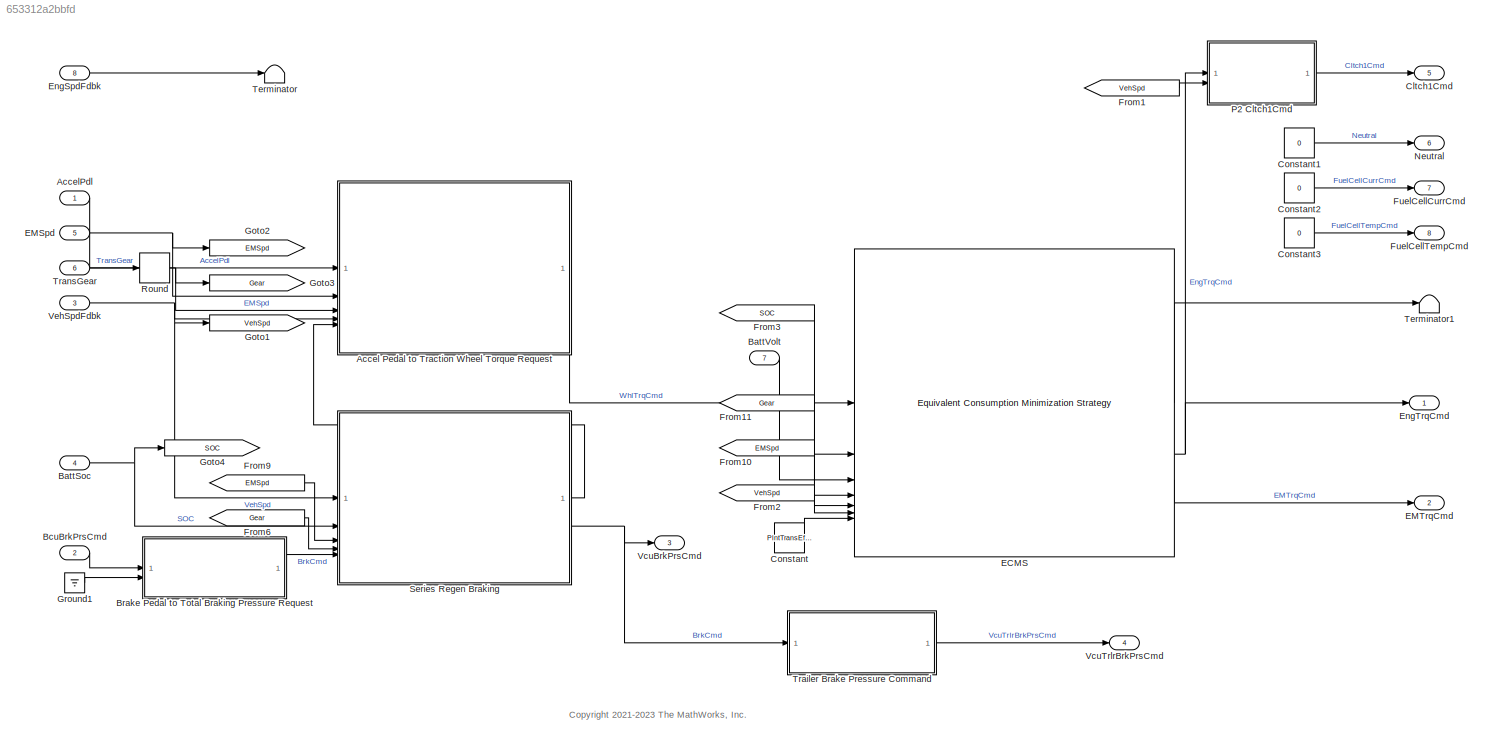
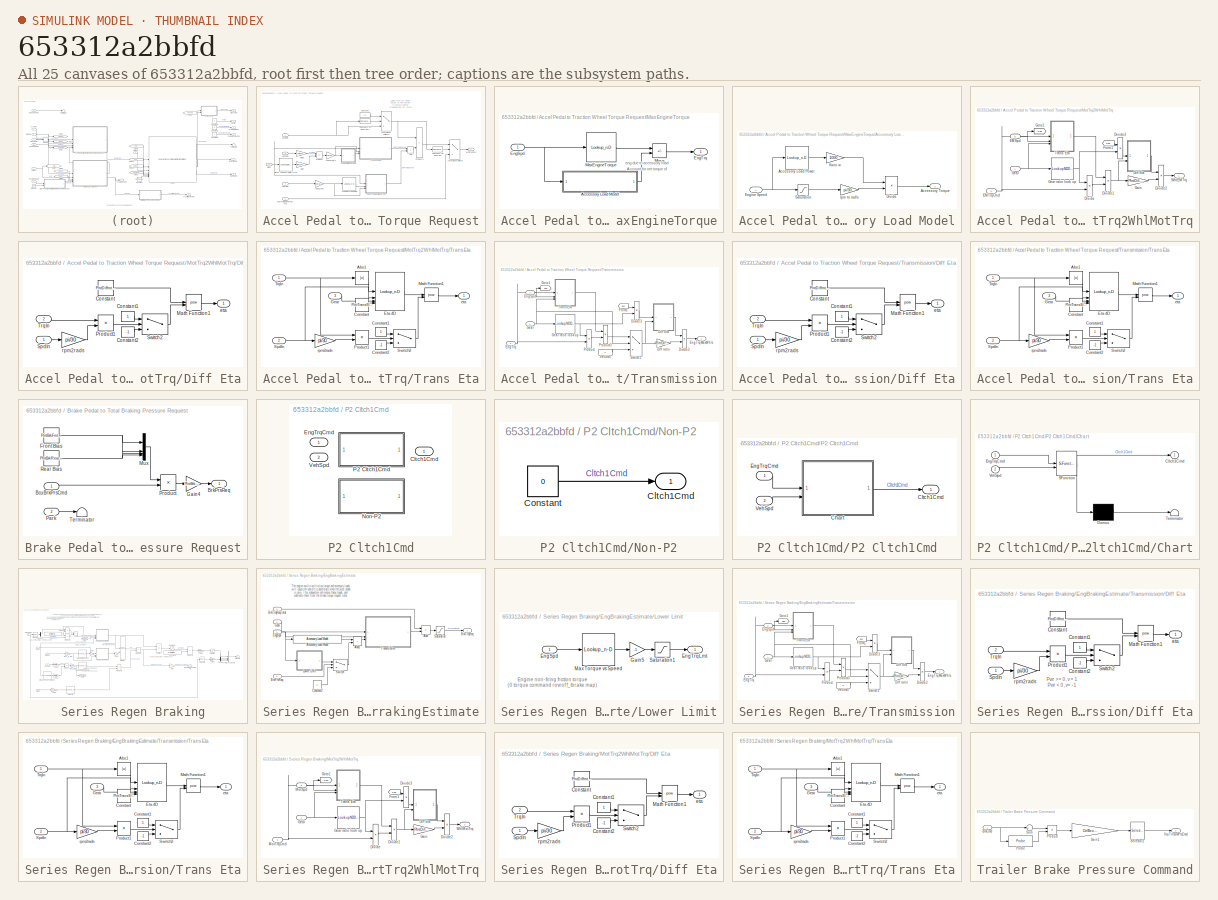
[diagram: thumbnail index - all 25 canvases of the model, root first then tree order]
MODEL slx_653312a2bbfd
KIND model
WORKSPACE source: mxarray member
WORKSPACE N_P0 = 0.001
BLOCK [Inport]    BcuBrkPrsCmd   
  OutDataTypeStr = double
  Port = 2
  PortDimensions = 4
  SamplingMode = Sample based
  SignalType = real
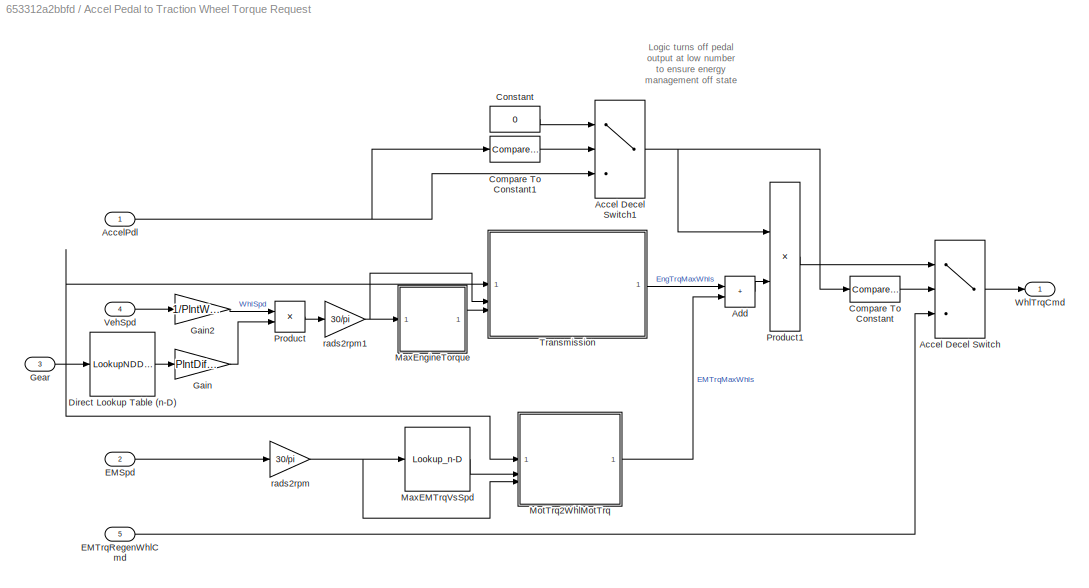
BLOCK [SubSystem] Accel Pedal to Traction Wheel Torque Request
  InitFcn = [~]=autosharedicon('autolibinternalvvblock',gcb,0);
BLOCK [Switch] Accel Pedal to Traction Wheel Torque Request/Accel Decel Switch
  Criteria = u2 > Threshold
  InputSameDT = off
  SaturateOnIntegerOverflow = off
BLOCK [Switch] Accel Pedal to Traction Wheel Torque Request/Accel Decel Switch1
  Criteria = u2 > Threshold
  InputSameDT = off
  SaturateOnIntegerOverflow = off
BLOCK [Inport] Accel Pedal to Traction Wheel Torque Request/AccelPdl
BLOCK [Sum] Accel Pedal to Traction Wheel Torque Request/Add
  IconShape = rectangular
BLOCK [Reference] Accel Pedal to Traction Wheel Torque Request/Compare To Constant  REF=simulink/Logic and Bit
Operations/Compare
To Constant
  SourceBlock = simulink/Logic and Bit\nOperations/Compare\nTo Constant
  SourceType = Compare To Constant
BLOCK [Reference] Accel Pedal to Traction Wheel Torque Request/Compare To Constant1  REF=simulink/Logic and Bit
Operations/Compare
To Constant
  SourceBlock = simulink/Logic and Bit\nOperations/Compare\nTo Constant
  SourceType = Compare To Constant
BLOCK [Constant] Accel Pedal to Traction Wheel Torque Request/Constant
  Value = 0
BLOCK [LookupNDDirect] Accel Pedal to Traction Wheel Torque Request/Direct Lookup Table (n-D)
  NumberOfTableDimensions = 1
  Table = PlntTransGearRatioVect
BLOCK [Inport] Accel Pedal to Traction Wheel Torque Request/EMSpd
  Port = 2
BLOCK [Inport] Accel Pedal to Traction Wheel Torque Request/EMTrqRegenWhlCmd
  Port = 5
BLOCK [Gain] Accel Pedal to Traction Wheel Torque Request/Gain
  Gain = PlntDiffrntlRatio
BLOCK [Gain] Accel Pedal to Traction Wheel Torque Request/Gain2
  Gain = 1/PlntWhlLdRadius
BLOCK [Inport] Accel Pedal to Traction Wheel Torque Request/Gear
  Port = 3
BLOCK [Lookup_n-D] Accel Pedal to Traction Wheel Torque Request/MaxEMTrqVsSpd
  BreakpointsForDimension1 = PlntEM1Spd*30/pi
  ExtrapMethod = Clip
  InputPortMap = u0
  InternalRulePriority = Speed
  NumberOfTableDimensions = 1
  OutDataTypeStr = Inherit: Inherit from 'Table data'
  RndMeth = Simplest
  Table = PlntEM1Trq
  UseLastTableValue = on
BLOCK [SubSystem] Accel Pedal to Traction Wheel Torque Request/MaxEngineTorque
BLOCK [SubSystem] Accel Pedal to Traction Wheel Torque Request/MaxEngineTorque/Accessory Load Model
BLOCK [Lookup_n-D] Accel Pedal to Traction Wheel Torque Request/MaxEngineTorque/Accessory Load Model/Accessory Load Power
  BreakpointsForDimension1 = PlntEngAccSpdBpt
  ExtrapMethod = Clip
  InputPortMap = u0
  InternalRulePriority = Speed
  LookupTableObject = ''
  NumberOfTableDimensions = 1
  RndMeth = Simplest
  Table = PlntEngAccPwrTbl
BLOCK [Outport] Accel Pedal to Traction Wheel Torque Request/MaxEngineTorque/Accessory Load Model/Accessory Torque
  VectorParamsAs1DForOutWhenUnconnected = off
BLOCK [Product] Accel Pedal to Traction Wheel Torque Request/MaxEngineTorque/Accessory Load Model/Divide
  Inputs = */
BLOCK [Inport] Accel Pedal to Traction Wheel Torque Request/MaxEngineTorque/Accessory Load Model/Engine Speed
BLOCK [Gain] Accel Pedal to Traction Wheel Torque Request/MaxEngineTorque/Accessory Load Model/Kw to w
  Gain = 1000
BLOCK [Saturate] Accel Pedal to Traction Wheel Torque Request/MaxEngineTorque/Accessory Load Model/Saturation
  LowerLimit = 300
  UpperLimit = Inf
BLOCK [Gain] Accel Pedal to Traction Wheel Torque Request/MaxEngineTorque/Accessory Load Model/rpm to rad//s
  Gain = pi/30
BLOCK [Inport] Accel Pedal to Traction Wheel Torque Request/MaxEngineTorque/EngSpd
BLOCK [Outport] Accel Pedal to Traction Wheel Torque Request/MaxEngineTorque/EngTrq
BLOCK [Lookup_n-D] Accel Pedal to Traction Wheel Torque Request/MaxEngineTorque/MaxEngineTorque
  BreakpointsForDimension1 = PlntEngBrkTrqSpdBpt
  ExtrapMethod = Clip
  InputPortMap = u0
  InternalRulePriority = Speed
  NumberOfTableDimensions = 1
  RndMeth = Simplest
  Table = [0 max(PlntEngBrkTrqMap(:,2:end))]
  UseLastTableValue = on
BLOCK [Sum] Accel Pedal to Traction Wheel Torque Request/MaxEngineTorque/Minus
  IconShape = rectangular
  Inputs = +-
BLOCK [SubSystem] Accel Pedal to Traction Wheel Torque Request/MotTrq2WhlMotTrq
  VariantControl = 1
BLOCK [SubSystem] Accel Pedal to Traction Wheel Torque Request/MotTrq2WhlMotTrq/Diff Eta
BLOCK [Constant] Accel Pedal to Traction Wheel Torque Request/MotTrq2WhlMotTrq/Diff Eta/Constant
  Value = PlntDiffrntlEff
BLOCK [Constant] Accel Pedal to Traction Wheel Torque Request/MotTrq2WhlMotTrq/Diff Eta/Constant1
  SampleTime = -1
BLOCK [Constant] Accel Pedal to Traction Wheel Torque Request/MotTrq2WhlMotTrq/Diff Eta/Constant2
  SampleTime = -1
  Value = -1
BLOCK [Math] Accel Pedal to Traction Wheel Torque Request/MotTrq2WhlMotTrq/Diff Eta/Math Function1
  Operator = pow
  OutputSignalType = real
  SignedPower = on
BLOCK [Product] Accel Pedal to Traction Wheel Torque Request/MotTrq2WhlMotTrq/Diff Eta/Product1
BLOCK [Inport] Accel Pedal to Traction Wheel Torque Request/MotTrq2WhlMotTrq/Diff Eta/SpdIn
BLOCK [Switch] Accel Pedal to Traction Wheel Torque Request/MotTrq2WhlMotTrq/Diff Eta/Switch2
  InputSameDT = off
  SaturateOnIntegerOverflow = off
BLOCK [Inport] Accel Pedal to Traction Wheel Torque Request/MotTrq2WhlMotTrq/Diff Eta/TrqIn
  Port = 2
BLOCK [Outport] Accel Pedal to Traction Wheel Torque Request/MotTrq2WhlMotTrq/Diff Eta/eta
  VectorParamsAs1DForOutWhenUnconnected = off
BLOCK [Gain] Accel Pedal to Traction Wheel Torque Request/MotTrq2WhlMotTrq/Diff Eta/rpm2rads
  Gain = pi/30
BLOCK [Product] Accel Pedal to Traction Wheel Torque Request/MotTrq2WhlMotTrq/Divide
  Inputs = **
BLOCK [Product] Accel Pedal to Traction Wheel Torque Request/MotTrq2WhlMotTrq/Divide1
  Inputs = **
BLOCK [Product] Accel Pedal to Traction Wheel Torque Request/MotTrq2WhlMotTrq/Divide2
  Inputs = **
BLOCK [Product] Accel Pedal to Traction Wheel Torque Request/MotTrq2WhlMotTrq/Divide3
  Inputs = */
BLOCK [Inport] Accel Pedal to Traction Wheel Torque Request/MotTrq2WhlMotTrq/EMSpd
  Port = 3
BLOCK [Inport] Accel Pedal to Traction Wheel Torque Request/MotTrq2WhlMotTrq/EMTrqCmd
  Port = 2
BLOCK [From] Accel Pedal to Traction Wheel Torque Request/MotTrq2WhlMotTrq/From1
  GotoTag = Spd
BLOCK [Gain] Accel Pedal to Traction Wheel Torque Request/MotTrq2WhlMotTrq/Gain
  Gain = PlntDiffrntlRatio
BLOCK [Inport] Accel Pedal to Traction Wheel Torque Request/MotTrq2WhlMotTrq/Gear
BLOCK [LookupNDDirect] Accel Pedal to Traction Wheel Torque Request/MotTrq2WhlMotTrq/Gear ratio look up
  NumberOfTableDimensions = 1
  Table = PlntTransGearRatioVect
BLOCK [Goto] Accel Pedal to Traction Wheel Torque Request/MotTrq2WhlMotTrq/Goto1
  GotoTag = Spd
BLOCK [SubSystem] Accel Pedal to Traction Wheel Torque Request/MotTrq2WhlMotTrq/Trans Eta
BLOCK [Abs] Accel Pedal to Traction Wheel Torque Request/MotTrq2WhlMotTrq/Trans Eta/Abs1
  SaturateOnIntegerOverflow = off
BLOCK [Constant] Accel Pedal to Traction Wheel Torque Request/MotTrq2WhlMotTrq/Trans Eta/Constant
  Value = PlntTransEffTempBpt(1)
BLOCK [Constant] Accel Pedal to Traction Wheel Torque Request/MotTrq2WhlMotTrq/Trans Eta/Constant1
  SampleTime = -1
BLOCK [Constant] Accel Pedal to Traction Wheel Torque Request/MotTrq2WhlMotTrq/Trans Eta/Constant2
  SampleTime = -1
  Value = -1
BLOCK [Lookup_n-D] Accel Pedal to Traction Wheel Torque Request/MotTrq2WhlMotTrq/Trans Eta/Eta 4D
  BreakpointsForDimension1 = PlntTransEffTrqBpt
  BreakpointsForDimension2 = PlntTransEffSpdBpt
  BreakpointsForDimension3 = PlntTransGearNumVect
  BreakpointsForDimension4 = PlntTransEffTempBpt
  ExtrapMethod = Clip
  InputPortMap = u0,u1,u2,u3
  InternalRulePriority = Speed
  LookupTableObject = ''
  NumberOfTableDimensions = 4
  RndMeth = Simplest
  Table = PlntTransEffTbl
BLOCK [Inport] Accel Pedal to Traction Wheel Torque Request/MotTrq2WhlMotTrq/Trans Eta/Gear
  Port = 3
BLOCK [Math] Accel Pedal to Traction Wheel Torque Request/MotTrq2WhlMotTrq/Trans Eta/Math Function1
  Operator = pow
  OutputSignalType = real
  SignedPower = on
BLOCK [Product] Accel Pedal to Traction Wheel Torque Request/MotTrq2WhlMotTrq/Trans Eta/Product1
BLOCK [Inport] Accel Pedal to Traction Wheel Torque Request/MotTrq2WhlMotTrq/Trans Eta/SpdIn
  Port = 2
BLOCK [Switch] Accel Pedal to Traction Wheel Torque Request/MotTrq2WhlMotTrq/Trans Eta/Switch2
  InputSameDT = off
  SaturateOnIntegerOverflow = off
BLOCK [Inport] Accel Pedal to Traction Wheel Torque Request/MotTrq2WhlMotTrq/Trans Eta/TrqIn
BLOCK [Outport] Accel Pedal to Traction Wheel Torque Request/MotTrq2WhlMotTrq/Trans Eta/eta
  VectorParamsAs1DForOutWhenUnconnected = off
BLOCK [Gain] Accel Pedal to Traction Wheel Torque Request/MotTrq2WhlMotTrq/Trans Eta/rpm2rads
  Gain = pi/30
BLOCK [Outport] Accel Pedal to Traction Wheel Torque Request/MotTrq2WhlMotTrq/WhlEMTrq
  VectorParamsAs1DForOutWhenUnconnected = off
BLOCK [Product] Accel Pedal to Traction Wheel Torque Request/Product
BLOCK [Product] Accel Pedal to Traction Wheel Torque Request/Product1
BLOCK [SubSystem] Accel Pedal to Traction Wheel Torque Request/Transmission
BLOCK [SubSystem] Accel Pedal to Traction Wheel Torque Request/Transmission/Diff Eta
BLOCK [Constant] Accel Pedal to Traction Wheel Torque Request/Transmission/Diff Eta/Constant
  Value = PlntDiffrntlEff
BLOCK [Constant] Accel Pedal to Traction Wheel Torque Request/Transmission/Diff Eta/Constant1
  SampleTime = -1
BLOCK [Constant] Accel Pedal to Traction Wheel Torque Request/Transmission/Diff Eta/Constant2
  SampleTime = -1
  Value = -1
BLOCK [Math] Accel Pedal to Traction Wheel Torque Request/Transmission/Diff Eta/Math Function1
  Operator = pow
  OutputSignalType = real
  SignedPower = on
BLOCK [Product] Accel Pedal to Traction Wheel Torque Request/Transmission/Diff Eta/Product1
BLOCK [Inport] Accel Pedal to Traction Wheel Torque Request/Transmission/Diff Eta/SpdIn
BLOCK [Switch] Accel Pedal to Traction Wheel Torque Request/Transmission/Diff Eta/Switch2
  InputSameDT = off
  SaturateOnIntegerOverflow = off
BLOCK [Inport] Accel Pedal to Traction Wheel Torque Request/Transmission/Diff Eta/TrqIn
  Port = 2
BLOCK [Outport] Accel Pedal to Traction Wheel Torque Request/Transmission/Diff Eta/eta
  VectorParamsAs1DForOutWhenUnconnected = off
BLOCK [Gain] Accel Pedal to Traction Wheel Torque Request/Transmission/Diff Eta/rpm2rads
  Gain = pi/30
BLOCK [Gain] Accel Pedal to Traction Wheel Torque Request/Transmission/Diff ratio
  Gain = PlntDiffrntlRatio
BLOCK [Product] Accel Pedal to Traction Wheel Torque Request/Transmission/Divide2
  Inputs = **
BLOCK [Product] Accel Pedal to Traction Wheel Torque Request/Transmission/Divide3
  Inputs = */
BLOCK [Inport] Accel Pedal to Traction Wheel Torque Request/Transmission/EngSpd
  Port = 2
BLOCK [Inport] Accel Pedal to Traction Wheel Torque Request/Transmission/EngTrq
  Port = 3
BLOCK [Outport] Accel Pedal to Traction Wheel Torque Request/Transmission/EngTrqMaxWhls
  VectorParamsAs1DForOutWhenUnconnected = off
BLOCK [From] Accel Pedal to Traction Wheel Torque Request/Transmission/From1
  GotoTag = Spd
BLOCK [Inport] Accel Pedal to Traction Wheel Torque Request/Transmission/Gear
BLOCK [LookupNDDirect] Accel Pedal to Traction Wheel Torque Request/Transmission/Gear ratio look up
  NumberOfTableDimensions = 1
  Table = PlntTransGearRatioVect
BLOCK [Goto] Accel Pedal to Traction Wheel Torque Request/Transmission/Goto1
  GotoTag = Spd
BLOCK [Product] Accel Pedal to Traction Wheel Torque Request/Transmission/Product
  RndMeth = Zero
BLOCK [Product] Accel Pedal to Traction Wheel Torque Request/Transmission/Product3
  Inputs = **
  RndMeth = Zero
BLOCK [Switch] Accel Pedal to Traction Wheel Torque Request/Transmission/Switch1
  Criteria = u2 > Threshold
  InputSameDT = off
  SaturateOnIntegerOverflow = off
BLOCK [SubSystem] Accel Pedal to Traction Wheel Torque Request/Transmission/Trans Eta
BLOCK [Abs] Accel Pedal to Traction Wheel Torque Request/Transmission/Trans Eta/Abs1
  SaturateOnIntegerOverflow = off
BLOCK [Constant] Accel Pedal to Traction Wheel Torque Request/Transmission/Trans Eta/Constant
  Value = PlntTransEffTempBpt(1)
BLOCK [Constant] Accel Pedal to Traction Wheel Torque Request/Transmission/Trans Eta/Constant1
  SampleTime = -1
BLOCK [Constant] Accel Pedal to Traction Wheel Torque Request/Transmission/Trans Eta/Constant2
  SampleTime = -1
  Value = -1
BLOCK [Lookup_n-D] Accel Pedal to Traction Wheel Torque Request/Transmission/Trans Eta/Eta 4D
  BreakpointsForDimension1 = PlntTransEffTrqBpt
  BreakpointsForDimension2 = PlntTransEffSpdBpt
  BreakpointsForDimension3 = PlntTransGearNumVect
  BreakpointsForDimension4 = PlntTransEffTempBpt
  ExtrapMethod = Clip
  InputPortMap = u0,u1,u2,u3
  InternalRulePriority = Speed
  LookupTableObject = ''
  NumberOfTableDimensions = 4
  RndMeth = Simplest
  Table = PlntTransEffTbl
BLOCK [Inport] Accel Pedal to Traction Wheel Torque Request/Transmission/Trans Eta/Gear
  Port = 3
BLOCK [Math] Accel Pedal to Traction Wheel Torque Request/Transmission/Trans Eta/Math Function1
  Operator = pow
  OutputSignalType = real
  SignedPower = on
BLOCK [Product] Accel Pedal to Traction Wheel Torque Request/Transmission/Trans Eta/Product1
BLOCK [Inport] Accel Pedal to Traction Wheel Torque Request/Transmission/Trans Eta/SpdIn
  Port = 2
BLOCK [Switch] Accel Pedal to Traction Wheel Torque Request/Transmission/Trans Eta/Switch2
  InputSameDT = off
  SaturateOnIntegerOverflow = off
BLOCK [Inport] Accel Pedal to Traction Wheel Torque Request/Transmission/Trans Eta/TrqIn
BLOCK [Outport] Accel Pedal to Traction Wheel Torque Request/Transmission/Trans Eta/eta
  VectorParamsAs1DForOutWhenUnconnected = off
BLOCK [Gain] Accel Pedal to Traction Wheel Torque Request/Transmission/Trans Eta/rpm2rads
  Gain = pi/30
BLOCK [Constant] Accel Pedal to Traction Wheel Torque Request/Transmission/neutral
  Value = 0
BLOCK [Inport] Accel Pedal to Traction Wheel Torque Request/VehSpd
  Port = 4
BLOCK [Outport] Accel Pedal to Traction Wheel Torque Request/WhlTrqCmd
  VectorParamsAs1DForOutWhenUnconnected = off
BLOCK [Gain] Accel Pedal to Traction Wheel Torque Request/rads2rpm
  Gain = 30/pi
BLOCK [Gain] Accel Pedal to Traction Wheel Torque Request/rads2rpm1
  Gain = 30/pi
BLOCK [Inport] AccelPdl
  OutDataTypeStr = double
  PortDimensions = 1
  SamplingMode = Sample based
  SignalType = real
BLOCK [Inport] BattSoc
  OutDataTypeStr = double
  Port = 4
  PortDimensions = 1
  SamplingMode = Sample based
  SignalType = real
BLOCK [Inport] BattVolt
  OutDataTypeStr = double
  Port = 7
  PortDimensions = 1
  SamplingMode = Sample based
  SignalType = real
BLOCK [SubSystem] Brake Pedal to Total Braking Pressure Request
BLOCK [Inport] Brake Pedal to Total Braking Pressure Request/BcuBrkPrsCmd
BLOCK [Outport] Brake Pedal to Total Braking Pressure Request/BrkPrsReq
  VectorParamsAs1DForOutWhenUnconnected = off
BLOCK [Constant] Brake Pedal to Total Braking Pressure Request/Front Bias
  NameLocation = top
  Value = PlntBrkFrntBias
BLOCK [Gain] Brake Pedal to Total Braking Pressure Request/Gain4
  Gain = PlntBrkPrsFctr
BLOCK [Mux] Brake Pedal to Total Braking Pressure Request/Mux
  DisplayOption = bar
BLOCK [Inport] Brake Pedal to Total Braking Pressure Request/Park
  Port = 2
BLOCK [Product] Brake Pedal to Total Braking Pressure Request/Product
BLOCK [Constant] Brake Pedal to Total Braking Pressure Request/Rear Bias
  Value = PlntBrkRearBias
BLOCK [Terminator] Brake Pedal to Total Braking Pressure Request/Terminator
BLOCK [Outport] Cltch1Cmd
  OutDataTypeStr = double
  Port = 5
  PortDimensions = 1
  SamplingMode = Sample based
  SignalType = real
  VectorParamsAs1DForOutWhenUnconnected = off
BLOCK [Constant] Constant
  Value = PlntTransEffTempBpt(2)
BLOCK [Constant] Constant1
  SampleTime = -1
  Value = 0
BLOCK [Constant] Constant2
  SampleTime = -1
  Value = 0
BLOCK [Constant] Constant3
  SampleTime = -1
  Value = 0
BLOCK [Reference] ECMS  REF=autolibhevctrlr/Equivalent Consumption Minimization Strategy
  SourceBlock = autolibhevctrlr/Equivalent Consumption Minimization Strategy
  SourceType = Equivalent Consumption Minimization Strategy
BLOCK [Inport] EMSpd
  OutDataTypeStr = double
  Port = 5
  PortDimensions = 1
  SamplingMode = Sample based
  SignalType = real
BLOCK [Outport] EMTrqCmd
  OutDataTypeStr = double
  Port = 2
  PortDimensions = 1
  SamplingMode = Sample based
  SignalType = real
  Unit = N*m
  VectorParamsAs1DForOutWhenUnconnected = off
BLOCK [Inport] EngSpdFdbk
  OutDataTypeStr = double
  Port = 8
  PortDimensions = 1
  SamplingMode = Sample based
  SignalType = real
BLOCK [Outport] EngTrqCmd
  OutDataTypeStr = double
  PortDimensions = 1
  SamplingMode = Sample based
  SignalType = real
  Unit = N*m
  VectorParamsAs1DForOutWhenUnconnected = off
BLOCK [From] From1
  GotoTag = VehSpd
BLOCK [From] From10
  GotoTag = EMSpd
BLOCK [From] From11
  GotoTag = Gear
BLOCK [From] From2
  GotoTag = VehSpd
BLOCK [From] From3
  GotoTag = SOC
BLOCK [From] From6
  GotoTag = Gear
BLOCK [From] From9
  GotoTag = EMSpd
BLOCK [Outport] FuelCellCurrCmd
  OutDataTypeStr = double
  Port = 7
  PortDimensions = 1
BLOCK [Outport] FuelCellTempCmd
  OutDataTypeStr = double
  Port = 8
  PortDimensions = 1
BLOCK [Goto] Goto1
  GotoTag = VehSpd
BLOCK [Goto] Goto2
  GotoTag = EMSpd
BLOCK [Goto] Goto3
  GotoTag = Gear
BLOCK [Goto] Goto4
  GotoTag = SOC
BLOCK [Ground] Ground1
BLOCK [Outport] Neutral
  OutDataTypeStr = double
  Port = 6
  PortDimensions = 1
  SamplingMode = Sample based
  SignalType = real
  VectorParamsAs1DForOutWhenUnconnected = off
BLOCK [SubSystem] P2 Cltch1Cmd
  LabelModeActiveChoice = 1
  Variant = on
  VariantControl = 1
  VariantControlMode = label
BLOCK [Outport] P2 Cltch1Cmd/Cltch1Cmd
BLOCK [Inport] P2 Cltch1Cmd/EngTrqCmd
BLOCK [SubSystem] P2 Cltch1Cmd/Non-P2
  VariantControl = 0
BLOCK [Outport] P2 Cltch1Cmd/Non-P2/Cltch1Cmd
  VectorParamsAs1DForOutWhenUnconnected = off
BLOCK [Constant] P2 Cltch1Cmd/Non-P2/Constant
  SampleTime = -1
  Value = 0
BLOCK [SubSystem] P2 Cltch1Cmd/P2 Cltch1Cmd
  VariantControl = 1
BLOCK [SubSystem] P2 Cltch1Cmd/P2 Cltch1Cmd/Chart
  ErrorFcn = Stateflow.Translate.translate
  PermitHierarchicalResolution = ExplicitOnly
  SFBlockType = Chart
  TreatAsAtomicUnit = on
BLOCK [Demux] P2 Cltch1Cmd/P2 Cltch1Cmd/Chart/ Demux 
  Outputs = 1
BLOCK [S-Function] P2 Cltch1Cmd/P2 Cltch1Cmd/Chart/ SFunction 
  EnableBusSupport = off
  FunctionName = sf_sfun
  PortCounts = [2 2]
  SFcnIsStateOwnerBlock = off
  SFunctionDeploymentMode = off
  Tag = Stateflow S-Function 1
BLOCK [Terminator] P2 Cltch1Cmd/P2 Cltch1Cmd/Chart/ Terminator 
BLOCK [Outport] P2 Cltch1Cmd/P2 Cltch1Cmd/Chart/Cltch1Cmd
  VectorParamsAs1DForOutWhenUnconnected = off
BLOCK [Inport] P2 Cltch1Cmd/P2 Cltch1Cmd/Chart/EngTrqCmd
BLOCK [Inport] P2 Cltch1Cmd/P2 Cltch1Cmd/Chart/VehSpd
  Port = 2
BLOCK [Outport] P2 Cltch1Cmd/P2 Cltch1Cmd/Cltch1Cmd
  VectorParamsAs1DForOutWhenUnconnected = off
BLOCK [Inport] P2 Cltch1Cmd/P2 Cltch1Cmd/EngTrqCmd
BLOCK [Inport] P2 Cltch1Cmd/P2 Cltch1Cmd/VehSpd
  Port = 2
BLOCK [Inport] P2 Cltch1Cmd/VehSpd
  Port = 2
BLOCK [Rounding] Round
  Operator = round
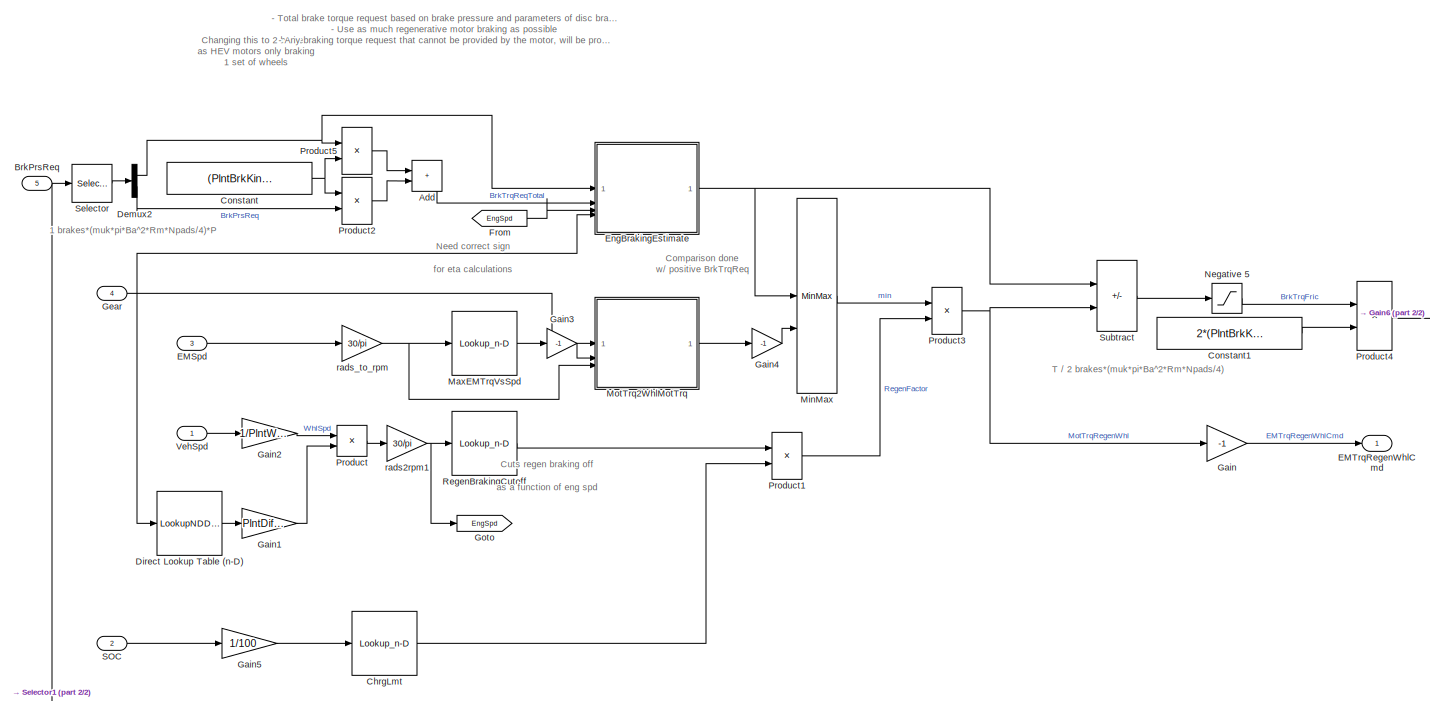
[diagram: Series Regen Braking - part 1/2, most of the canvas]
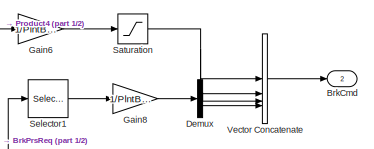
[diagram: Series Regen Braking - part 2/2, middle right region]
BLOCK [SubSystem] Series Regen Braking
  InitFcn = [~]=autosharedicon('autolibinternalvvblock',gcb,0);
  VariantControl = 0
BLOCK [Outport] Series Regen Braking/ BrkCmd
  Port = 2
  VectorParamsAs1DForOutWhenUnconnected = off
BLOCK [Outport] Series Regen Braking/ EMTrqRegenWhlCmd
  VectorParamsAs1DForOutWhenUnconnected = off
BLOCK [Sum] Series Regen Braking/Add
  IconShape = rectangular
BLOCK [Inport] Series Regen Braking/BrkPrsReq 
  Port = 5
BLOCK [Lookup_n-D] Series Regen Braking/ChrgLmt
  BreakpointsForDimension1 = CtrlVcuHevPxSocBpt
  ExtrapMethod = Clip
  InputPortMap = u0
  InternalRulePriority = Speed
  NumberOfTableDimensions = 1
  RndMeth = Simplest
  Table = CtrlVcuHevPxChrgLmtBpt
  UseLastTableValue = on
BLOCK [Constant] Series Regen Braking/Constant
  Value = (PlntBrkKinFricCffFrnt*pi*PlntBrkActrBoreFrnt^2*PlntBrkPadMeanRadiusFrnt*PlntBrkNumPadsFrnt/4)
BLOCK [Constant] Series Regen Braking/Constant1
  Value = 2*(PlntBrkKinFricCffFrnt*pi*PlntBrkActrBoreFrnt^2*PlntBrkPadMeanRadiusFrnt*PlntBrkNumPadsFrnt/4)
BLOCK [Demux] Series Regen Braking/Demux
  Outputs = 2
BLOCK [Demux] Series Regen Braking/Demux2
  Outputs = 2
BLOCK [LookupNDDirect] Series Regen Braking/Direct Lookup Table (n-D)
  NumberOfTableDimensions = 1
  Table = PlntTransGearRatioVect
BLOCK [Inport] Series Regen Braking/EMSpd
  Port = 3
BLOCK [SubSystem] Series Regen Braking/EngBrakingEstimate
BLOCK [Reference] Series Regen Braking/EngBrakingEstimate/Accessory Load Model  REF=autolibhevctrlrcommon/Accessory Load Model
  SourceBlock = autolibhevctrlrcommon/Accessory Load Model
BLOCK [Sum] Series Regen Braking/EngBrakingEstimate/Add
  IconShape = rectangular
  Inputs = +-
BLOCK [Sum] Series Regen Braking/EngBrakingEstimate/Add1
  IconShape = rectangular
BLOCK [Inport] Series Regen Braking/EngBrakingEstimate/BrkPrsReq
BLOCK [Outport] Series Regen Braking/EngBrakingEstimate/BrkTrqReq
  VectorParamsAs1DForOutWhenUnconnected = off
BLOCK [Inport] Series Regen Braking/EngBrakingEstimate/BrkTrqReqTotal
  Port = 2
BLOCK [Constant] Series Regen Braking/EngBrakingEstimate/Constant2
  Value = 0
BLOCK [Inport] Series Regen Braking/EngBrakingEstimate/EngSpd
  Port = 3
BLOCK [Inport] Series Regen Braking/EngBrakingEstimate/Gear
  Port = 4
BLOCK [SubSystem] Series Regen Braking/EngBrakingEstimate/Lower Limit
BLOCK [Inport] Series Regen Braking/EngBrakingEstimate/Lower Limit/EngSpd
BLOCK [Outport] Series Regen Braking/EngBrakingEstimate/Lower Limit/EngTrqLmt
  VectorParamsAs1DForOutWhenUnconnected = off
BLOCK [Gain] Series Regen Braking/EngBrakingEstimate/Lower Limit/Gain5
  Gain = -1
BLOCK [Lookup_n-D] Series Regen Braking/EngBrakingEstimate/Lower Limit/Max Torque vs Speed
  BreakpointsForDimension1 = [0 PlntEngBrkTrqSpdBpt(:,2)-1 PlntEngBrkTrqSpdBpt(:,2:end)]
  ExtrapMethod = Clip
  InputPortMap = u0
  NumberOfTableDimensions = 1
  RndMeth = Simplest
  Table = [0 0 min(PlntEngBrkTrqMap(:,2:end))]
  UseLastTableValue = on
BLOCK [Saturate] Series Regen Braking/EngBrakingEstimate/Lower Limit/Saturation1
  LowerLimit = 0
  UpperLimit = inf
BLOCK [Saturate] Series Regen Braking/EngBrakingEstimate/Saturation
  LowerLimit = 0
  UpperLimit = inf
BLOCK [Switch] Series Regen Braking/EngBrakingEstimate/Switch
  Criteria = u2 > Threshold
  InputSameDT = off
  SaturateOnIntegerOverflow = off
BLOCK [SubSystem] Series Regen Braking/EngBrakingEstimate/Transmission
BLOCK [SubSystem] Series Regen Braking/EngBrakingEstimate/Transmission/Diff Eta
BLOCK [Constant] Series Regen Braking/EngBrakingEstimate/Transmission/Diff Eta/Constant
  Value = PlntDiffrntlEff
BLOCK [Constant] Series Regen Braking/EngBrakingEstimate/Transmission/Diff Eta/Constant1
  SampleTime = -1
BLOCK [Constant] Series Regen Braking/EngBrakingEstimate/Transmission/Diff Eta/Constant2
  SampleTime = -1
  Value = -1
BLOCK [Math] Series Regen Braking/EngBrakingEstimate/Transmission/Diff Eta/Math Function1
  Operator = pow
  OutputSignalType = real
  SignedPower = on
BLOCK [Product] Series Regen Braking/EngBrakingEstimate/Transmission/Diff Eta/Product1
BLOCK [Inport] Series Regen Braking/EngBrakingEstimate/Transmission/Diff Eta/SpdIn
BLOCK [Switch] Series Regen Braking/EngBrakingEstimate/Transmission/Diff Eta/Switch2
  InputSameDT = off
  SaturateOnIntegerOverflow = off
BLOCK [Inport] Series Regen Braking/EngBrakingEstimate/Transmission/Diff Eta/TrqIn
  Port = 2
BLOCK [Outport] Series Regen Braking/EngBrakingEstimate/Transmission/Diff Eta/eta
  VectorParamsAs1DForOutWhenUnconnected = off
BLOCK [Gain] Series Regen Braking/EngBrakingEstimate/Transmission/Diff Eta/rpm2rads
  Gain = pi/30
BLOCK [Gain] Series Regen Braking/EngBrakingEstimate/Transmission/Diff ratio
  Gain = PlntDiffrntlRatio
BLOCK [Product] Series Regen Braking/EngBrakingEstimate/Transmission/Divide2
  Inputs = **
BLOCK [Product] Series Regen Braking/EngBrakingEstimate/Transmission/Divide3
  Inputs = */
BLOCK [Inport] Series Regen Braking/EngBrakingEstimate/Transmission/EngSpd
  Port = 2
BLOCK [Inport] Series Regen Braking/EngBrakingEstimate/Transmission/EngTrq
  Port = 3
BLOCK [Outport] Series Regen Braking/EngBrakingEstimate/Transmission/EngTrqMaxWhls
  VectorParamsAs1DForOutWhenUnconnected = off
BLOCK [From] Series Regen Braking/EngBrakingEstimate/Transmission/From1
  GotoTag = Spd
BLOCK [Inport] Series Regen Braking/EngBrakingEstimate/Transmission/Gear
BLOCK [LookupNDDirect] Series Regen Braking/EngBrakingEstimate/Transmission/Gear ratio look up
  NumberOfTableDimensions = 1
  Table = PlntTransGearRatioVect
BLOCK [Goto] Series Regen Braking/EngBrakingEstimate/Transmission/Goto1
  GotoTag = Spd
BLOCK [Product] Series Regen Braking/EngBrakingEstimate/Transmission/Product
  RndMeth = Zero
BLOCK [Product] Series Regen Braking/EngBrakingEstimate/Transmission/Product3
  Inputs = **
  RndMeth = Zero
BLOCK [Switch] Series Regen Braking/EngBrakingEstimate/Transmission/Switch1
  Criteria = u2 > Threshold
  InputSameDT = off
  SaturateOnIntegerOverflow = off
BLOCK [SubSystem] Series Regen Braking/EngBrakingEstimate/Transmission/Trans Eta
BLOCK [Abs] Series Regen Braking/EngBrakingEstimate/Transmission/Trans Eta/Abs1
  SaturateOnIntegerOverflow = off
BLOCK [Constant] Series Regen Braking/EngBrakingEstimate/Transmission/Trans Eta/Constant
  Value = PlntTransEffTempBpt(1)
BLOCK [Constant] Series Regen Braking/EngBrakingEstimate/Transmission/Trans Eta/Constant1
  SampleTime = -1
BLOCK [Constant] Series Regen Braking/EngBrakingEstimate/Transmission/Trans Eta/Constant2
  SampleTime = -1
  Value = -1
BLOCK [Lookup_n-D] Series Regen Braking/EngBrakingEstimate/Transmission/Trans Eta/Eta 4D
  BreakpointsForDimension1 = PlntTransEffTrqBpt
  BreakpointsForDimension2 = PlntTransEffSpdBpt
  BreakpointsForDimension3 = PlntTransGearNumVect
  BreakpointsForDimension4 = PlntTransEffTempBpt
  ExtrapMethod = Clip
  InputPortMap = u0,u1,u2,u3
  InternalRulePriority = Speed
  LookupTableObject = ''
  NumberOfTableDimensions = 4
  RndMeth = Simplest
  Table = PlntTransEffTbl
BLOCK [Inport] Series Regen Braking/EngBrakingEstimate/Transmission/Trans Eta/Gear
  Port = 3
BLOCK [Math] Series Regen Braking/EngBrakingEstimate/Transmission/Trans Eta/Math Function1
  Operator = pow
  OutputSignalType = real
  SignedPower = on
BLOCK [Product] Series Regen Braking/EngBrakingEstimate/Transmission/Trans Eta/Product1
BLOCK [Inport] Series Regen Braking/EngBrakingEstimate/Transmission/Trans Eta/SpdIn
  Port = 2
BLOCK [Switch] Series Regen Braking/EngBrakingEstimate/Transmission/Trans Eta/Switch2
  InputSameDT = off
  SaturateOnIntegerOverflow = off
BLOCK [Inport] Series Regen Braking/EngBrakingEstimate/Transmission/Trans Eta/TrqIn
BLOCK [Outport] Series Regen Braking/EngBrakingEstimate/Transmission/Trans Eta/eta
  VectorParamsAs1DForOutWhenUnconnected = off
BLOCK [Gain] Series Regen Braking/EngBrakingEstimate/Transmission/Trans Eta/rpm2rads
  Gain = pi/30
BLOCK [Constant] Series Regen Braking/EngBrakingEstimate/Transmission/neutral
  Value = 0
BLOCK [From] Series Regen Braking/From
  GotoTag = EngSpd
BLOCK [Gain] Series Regen Braking/Gain
  Gain = -1
BLOCK [Gain] Series Regen Braking/Gain1
  Gain = PlntDiffrntlRatio
BLOCK [Gain] Series Regen Braking/Gain2
  Gain = 1/PlntWhlLdRadius
BLOCK [Gain] Series Regen Braking/Gain3
  Gain = -1
BLOCK [Gain] Series Regen Braking/Gain4
  Gain = -1
BLOCK [Gain] Series Regen Braking/Gain5
  Gain = 1/100
BLOCK [Gain] Series Regen Braking/Gain6
  Gain = 1/PlntBrkPrsFctr
BLOCK [Gain] Series Regen Braking/Gain8
  Gain = 1/PlntBrkPrsFctr
BLOCK [Inport] Series Regen Braking/Gear
  Port = 4
BLOCK [Goto] Series Regen Braking/Goto
  GotoTag = EngSpd
BLOCK [Lookup_n-D] Series Regen Braking/MaxEMTrqVsSpd
  BreakpointsForDimension1 = PlntEM1Spd*30/pi
  ExtrapMethod = Clip
  InputPortMap = u0
  InternalRulePriority = Speed
  NumberOfTableDimensions = 1
  OutDataTypeStr = Inherit: Inherit from 'Table data'
  RndMeth = Simplest
  Table = PlntEM1Trq
  UseLastTableValue = on
BLOCK [MinMax] Series Regen Braking/MinMax
  Inputs = 2
BLOCK [SubSystem] Series Regen Braking/MotTrq2WhlMotTrq
  VariantControl = 1
BLOCK [SubSystem] Series Regen Braking/MotTrq2WhlMotTrq/Diff Eta
BLOCK [Constant] Series Regen Braking/MotTrq2WhlMotTrq/Diff Eta/Constant
  Value = PlntDiffrntlEff
BLOCK [Constant] Series Regen Braking/MotTrq2WhlMotTrq/Diff Eta/Constant1
  SampleTime = -1
BLOCK [Constant] Series Regen Braking/MotTrq2WhlMotTrq/Diff Eta/Constant2
  SampleTime = -1
  Value = -1
BLOCK [Math] Series Regen Braking/MotTrq2WhlMotTrq/Diff Eta/Math Function1
  Operator = pow
  OutputSignalType = real
  SignedPower = on
BLOCK [Product] Series Regen Braking/MotTrq2WhlMotTrq/Diff Eta/Product1
BLOCK [Inport] Series Regen Braking/MotTrq2WhlMotTrq/Diff Eta/SpdIn
BLOCK [Switch] Series Regen Braking/MotTrq2WhlMotTrq/Diff Eta/Switch2
  InputSameDT = off
  SaturateOnIntegerOverflow = off
BLOCK [Inport] Series Regen Braking/MotTrq2WhlMotTrq/Diff Eta/TrqIn
  Port = 2
BLOCK [Outport] Series Regen Braking/MotTrq2WhlMotTrq/Diff Eta/eta
  VectorParamsAs1DForOutWhenUnconnected = off
BLOCK [Gain] Series Regen Braking/MotTrq2WhlMotTrq/Diff Eta/rpm2rads
  Gain = pi/30
BLOCK [Product] Series Regen Braking/MotTrq2WhlMotTrq/Divide
  Inputs = **
BLOCK [Product] Series Regen Braking/MotTrq2WhlMotTrq/Divide1
  Inputs = **
BLOCK [Product] Series Regen Braking/MotTrq2WhlMotTrq/Divide2
  Inputs = **
BLOCK [Product] Series Regen Braking/MotTrq2WhlMotTrq/Divide3
  Inputs = */
BLOCK [From] Series Regen Braking/MotTrq2WhlMotTrq/From1
  GotoTag = Spd
BLOCK [Gain] Series Regen Braking/MotTrq2WhlMotTrq/Gain
  Gain = PlntDiffrntlRatio
BLOCK [Inport] Series Regen Braking/MotTrq2WhlMotTrq/Gear
BLOCK [LookupNDDirect] Series Regen Braking/MotTrq2WhlMotTrq/Gear ratio look up
  NumberOfTableDimensions = 1
  Table = PlntTransGearRatioVect
BLOCK [Goto] Series Regen Braking/MotTrq2WhlMotTrq/Goto1
  GotoTag = Spd
BLOCK [Inport] Series Regen Braking/MotTrq2WhlMotTrq/MotSpd
  Port = 3
BLOCK [Inport] Series Regen Braking/MotTrq2WhlMotTrq/MotTrqCmd
  Port = 2
BLOCK [SubSystem] Series Regen Braking/MotTrq2WhlMotTrq/Trans Eta
BLOCK [Abs] Series Regen Braking/MotTrq2WhlMotTrq/Trans Eta/Abs1
  SaturateOnIntegerOverflow = off
BLOCK [Constant] Series Regen Braking/MotTrq2WhlMotTrq/Trans Eta/Constant
  Value = PlntTransEffTempBpt(1)
BLOCK [Constant] Series Regen Braking/MotTrq2WhlMotTrq/Trans Eta/Constant1
  SampleTime = -1
BLOCK [Constant] Series Regen Braking/MotTrq2WhlMotTrq/Trans Eta/Constant2
  SampleTime = -1
  Value = -1
BLOCK [Lookup_n-D] Series Regen Braking/MotTrq2WhlMotTrq/Trans Eta/Eta 4D
  BreakpointsForDimension1 = PlntTransEffTrqBpt
  BreakpointsForDimension2 = PlntTransEffSpdBpt
  BreakpointsForDimension3 = PlntTransGearNumVect
  BreakpointsForDimension4 = PlntTransEffTempBpt
  ExtrapMethod = Clip
  InputPortMap = u0,u1,u2,u3
  InternalRulePriority = Speed
  LookupTableObject = ''
  NumberOfTableDimensions = 4
  RndMeth = Simplest
  Table = PlntTransEffTbl
BLOCK [Inport] Series Regen Braking/MotTrq2WhlMotTrq/Trans Eta/Gear
  Port = 3
BLOCK [Math] Series Regen Braking/MotTrq2WhlMotTrq/Trans Eta/Math Function1
  Operator = pow
  OutputSignalType = real
  SignedPower = on
BLOCK [Product] Series Regen Braking/MotTrq2WhlMotTrq/Trans Eta/Product1
BLOCK [Inport] Series Regen Braking/MotTrq2WhlMotTrq/Trans Eta/SpdIn
  Port = 2
BLOCK [Switch] Series Regen Braking/MotTrq2WhlMotTrq/Trans Eta/Switch2
  InputSameDT = off
  SaturateOnIntegerOverflow = off
BLOCK [Inport] Series Regen Braking/MotTrq2WhlMotTrq/Trans Eta/TrqIn
BLOCK [Outport] Series Regen Braking/MotTrq2WhlMotTrq/Trans Eta/eta
  VectorParamsAs1DForOutWhenUnconnected = off
BLOCK [Gain] Series Regen Braking/MotTrq2WhlMotTrq/Trans Eta/rpm2rads
  Gain = pi/30
BLOCK [Outport] Series Regen Braking/MotTrq2WhlMotTrq/WhlMotTrq
  VectorParamsAs1DForOutWhenUnconnected = off
BLOCK [Saturate] Series Regen Braking/Negative 5
  LowerLimit = 0
  UpperLimit = inf
BLOCK [Product] Series Regen Braking/Product
BLOCK [Product] Series Regen Braking/Product1
BLOCK [Product] Series Regen Braking/Product2
BLOCK [Product] Series Regen Braking/Product3
BLOCK [Product] Series Regen Braking/Product4
  Inputs = */
BLOCK [Product] Series Regen Braking/Product5
BLOCK [Lookup_n-D] Series Regen Braking/RegenBrakingCutoff
  BreakpointsForDimension1 = [PlntEngBrkTrqSpdBpt(2) PlntEngBrkTrqSpdBpt(3)]
  ExtrapMethod = Clip
  InputPortMap = u0
  InternalRulePriority = Speed
  NumberOfTableDimensions = 1
  RndMeth = Simplest
  Table = CtrlVcuHevPxRegenBrkCutOff
  UseLastTableValue = on
BLOCK [Inport] Series Regen Braking/SOC
  Port = 2
BLOCK [Saturate] Series Regen Braking/Saturation
  LowerLimit = 0
  UpperLimit = 1
BLOCK [Selector] Series Regen Braking/Selector
  IndexOptions = Index vector (dialog)
  Indices = [1 2]
  InputPortWidth = 4
  OutputSizes = 1
BLOCK [Selector] Series Regen Braking/Selector1
  IndexOptions = Index vector (dialog)
  Indices = [3 4]
  InputPortWidth = 4
  OutputSizes = 1
BLOCK [Sum] Series Regen Braking/Subtract
  IconShape = rectangular
  Inputs = +-
BLOCK [Concatenate] Series Regen Braking/Vector Concatenate
  NumInputs = 4
BLOCK [Inport] Series Regen Braking/VehSpd
BLOCK [Gain] Series Regen Braking/rads2rpm1
  Gain = 30/pi
BLOCK [Gain] Series Regen Braking/rads_to_rpm
  Gain = 30/pi
BLOCK [Terminator] Terminator
BLOCK [Terminator] Terminator1
BLOCK [SubSystem] Trailer Brake Pressure Command
BLOCK [Inport] Trailer Brake Pressure Command/BrkCmd
BLOCK [Gain] Trailer Brake Pressure Command/Gain1
  Gain = CtrlBcuTrlrBrkGain
BLOCK [Probe] Trailer Brake Pressure Command/Probe
  ProbeComplexSignal = off
  ProbeSampleTime = off
BLOCK [Product] Trailer Brake Pressure Command/Product
  Inputs = */
BLOCK [Selector] Trailer Brake Pressure Command/Selector2
  IndexOptions = Index vector (dialog)
  Indices = [1 1 1 1 1 1]
  InputPortWidth = 1
  OutputSizes = 1
BLOCK [Sum] Trailer Brake Pressure Command/Sum
  Inputs = +
BLOCK [Outport] Trailer Brake Pressure Command/VcuTrlrBrkPrsCmd
BLOCK [Inport] TransGear
  OutDataTypeStr = double
  Port = 6
  PortDimensions = 1
  SamplingMode = Sample based
  SignalType = real
BLOCK [Outport] VcuBrkPrsCmd
  OutDataTypeStr = double
  Port = 3
  PortDimensions = 4
  SamplingMode = Sample based
  SignalType = real
  VectorParamsAs1DForOutWhenUnconnected = off
BLOCK [Outport] VcuTrlrBrkPrsCmd
  Port = 4
  PortDimensions = 6
  VectorParamsAs1DForOutWhenUnconnected = off
BLOCK [Inport] VehSpdFdbk
  OutDataTypeStr = double
  Port = 3
  PortDimensions = 1
  SamplingMode = Sample based
  SignalType = real
ANNOTATION (root): <copyright redacted>
ANNOTATION Accel Pedal to Traction Wheel Torque Request: Logic turns off pedal output at low number to ensure energy management off state
ANNOTATION Accel Pedal to Traction Wheel Torque Request/MaxEngineTorque: Account for net torque of eng due to accessory load
ANNOTATION Series Regen Braking: - Total brake torque request based on brake pressure and parameters of disc brakes - Use as much regenerative motor braking as possible - Any braking torque request that cannot be provided by the motor, will be provided by the friction brakes
ANNOTATION Series Regen Braking: 1 brakes*(muk*pi*Ba^2*Rm*Npads/4)*P
ANNOTATION Series Regen Braking: Changing this to 2 brakes, as HEV motors only braking 1 set of wheels
ANNOTATION Series Regen Braking: Comparison done w/ positive BrkTrqReq
ANNOTATION Series Regen Braking: Cuts regen braking off as a function of eng spd
ANNOTATION Series Regen Braking: Need correct sign for eta calculations
ANNOTATION Series Regen Braking: T / 2 brakes*(muk*pi*Ba^2*Rm*Npads/4)
ANNOTATION Series Regen Braking/EngBrakingEstimate: The engine non-firing friction torque and accessory loads will cause the vehicle to decelerate when the accel pedal is zero. This subsystem estimates these loads, and subtracts them from the Brake torque request total.
ANNOTATION Series Regen Braking/EngBrakingEstimate/Lower Limit: Engine non-firing friction torque (0 torque command row of f_tbrake map)
ANNOTATION Series Regen Braking/EngBrakingEstimate/Transmission/Diff Eta: Pwr >= 0, v = 1 Pwr < 0, v= -1
LINE    BcuBrkPrsCmd   :1 -> Brake Pedal to Total Braking Pressure Request:1
NET Accel Pedal to Traction Wheel Torque Request/Accel Decel Switch1:1 -> Accel Pedal to Traction Wheel Torque Request/Compare To Constant:1, Accel Pedal to Traction Wheel Torque Request/Product1:1
LINE Accel Pedal to Traction Wheel Torque Request/Accel Decel Switch:1 -> Accel Pedal to Traction Wheel Torque Request/WhlTrqCmd:1
NET Accel Pedal to Traction Wheel Torque Request/AccelPdl:1 -> Accel Pedal to Traction Wheel Torque Request/Accel Decel Switch1:3, Accel Pedal to Traction Wheel Torque Request/Compare To Constant1:1
LINE Accel Pedal to Traction Wheel Torque Request/Add:1 -> Accel Pedal to Traction Wheel Torque Request/Product1:2
LINE Accel Pedal to Traction Wheel Torque Request/Compare To Constant1:1 -> Accel Pedal to Traction Wheel Torque Request/Accel Decel Switch1:2
LINE Accel Pedal to Traction Wheel Torque Request/Compare To Constant:1 -> Accel Pedal to Traction Wheel Torque Request/Accel Decel Switch:2
LINE Accel Pedal to Traction Wheel Torque Request/Constant:1 -> Accel Pedal to Traction Wheel Torque Request/Accel Decel Switch1:1
LINE Accel Pedal to Traction Wheel Torque Request/Direct Lookup Table (n-D):1 -> Accel Pedal to Traction Wheel Torque Request/Gain:1
LINE Accel Pedal to Traction Wheel Torque Request/EMSpd:1 -> Accel Pedal to Traction Wheel Torque Request/rads2rpm:1
LINE Accel Pedal to Traction Wheel Torque Request/EMTrqRegenWhlCmd:1 -> Accel Pedal to Traction Wheel Torque Request/Accel Decel Switch:3
LINE Accel Pedal to Traction Wheel Torque Request/Gain2:1 -> Accel Pedal to Traction Wheel Torque Request/Product:1
LINE Accel Pedal to Traction Wheel Torque Request/Gain:1 -> Accel Pedal to Traction Wheel Torque Request/Product:2
NET Accel Pedal to Traction Wheel Torque Request/Gear:1 -> Accel Pedal to Traction Wheel Torque Request/Direct Lookup Table (n-D):1, Accel Pedal to Traction Wheel Torque Request/MotTrq2WhlMotTrq:1, Accel Pedal to Traction Wheel Torque Request/Transmission:1
LINE Accel Pedal to Traction Wheel Torque Request/MaxEMTrqVsSpd:1 -> Accel Pedal to Traction Wheel Torque Request/MotTrq2WhlMotTrq:2
LINE Accel Pedal to Traction Wheel Torque Request/MaxEngineTorque/Accessory Load Model/Accessory Load Power:1 -> Accel Pedal to Traction Wheel Torque Request/MaxEngineTorque/Accessory Load Model/Kw to w:1
LINE Accel Pedal to Traction Wheel Torque Request/MaxEngineTorque/Accessory Load Model/Divide:1 -> Accel Pedal to Traction Wheel Torque Request/MaxEngineTorque/Accessory Load Model/Accessory Torque:1
NET Accel Pedal to Traction Wheel Torque Request/MaxEngineTorque/Accessory Load Model/Engine Speed:1 -> Accel Pedal to Traction Wheel Torque Request/MaxEngineTorque/Accessory Load Model/Accessory Load Power:1, Accel Pedal to Traction Wheel Torque Request/MaxEngineTorque/Accessory Load Model/Saturation:1
LINE Accel Pedal to Traction Wheel Torque Request/MaxEngineTorque/Accessory Load Model/Kw to w:1 -> Accel Pedal to Traction Wheel Torque Request/MaxEngineTorque/Accessory Load Model/Divide:1
LINE Accel Pedal to Traction Wheel Torque Request/MaxEngineTorque/Accessory Load Model/Saturation:1 -> Accel Pedal to Traction Wheel Torque Request/MaxEngineTorque/Accessory Load Model/rpm to rad//s:1
LINE Accel Pedal to Traction Wheel Torque Request/MaxEngineTorque/Accessory Load Model/rpm to rad//s:1 -> Accel Pedal to Traction Wheel Torque Request/MaxEngineTorque/Accessory Load Model/Divide:2
LINE Accel Pedal to Traction Wheel Torque Request/MaxEngineTorque/Accessory Load Model:1 -> Accel Pedal to Traction Wheel Torque Request/MaxEngineTorque/Minus:2
NET Accel Pedal to Traction Wheel Torque Request/MaxEngineTorque/EngSpd:1 -> Accel Pedal to Traction Wheel Torque Request/MaxEngineTorque/Accessory Load Model:1, Accel Pedal to Traction Wheel Torque Request/MaxEngineTorque/MaxEngineTorque:1
LINE Accel Pedal to Traction Wheel Torque Request/MaxEngineTorque/MaxEngineTorque:1 -> Accel Pedal to Traction Wheel Torque Request/MaxEngineTorque/Minus:1
LINE Accel Pedal to Traction Wheel Torque Request/MaxEngineTorque/Minus:1 -> Accel Pedal to Traction Wheel Torque Request/MaxEngineTorque/EngTrq:1
LINE Accel Pedal to Traction Wheel Torque Request/MaxEngineTorque:1 -> Accel Pedal to Traction Wheel Torque Request/Transmission:3
LINE Accel Pedal to Traction Wheel Torque Request/MotTrq2WhlMotTrq/Diff Eta/Constant1:1 -> Accel Pedal to Traction Wheel Torque Request/MotTrq2WhlMotTrq/Diff Eta/Switch2:1
LINE Accel Pedal to Traction Wheel Torque Request/MotTrq2WhlMotTrq/Diff Eta/Constant2:1 -> Accel Pedal to Traction Wheel Torque Request/MotTrq2WhlMotTrq/Diff Eta/Switch2:3
LINE Accel Pedal to Traction Wheel Torque Request/MotTrq2WhlMotTrq/Diff Eta/Constant:1 -> Accel Pedal to Traction Wheel Torque Request/MotTrq2WhlMotTrq/Diff Eta/Math Function1:1
LINE Accel Pedal to Traction Wheel Torque Request/MotTrq2WhlMotTrq/Diff Eta/Math Function1:1 -> Accel Pedal to Traction Wheel Torque Request/MotTrq2WhlMotTrq/Diff Eta/eta:1
LINE Accel Pedal to Traction Wheel Torque Request/MotTrq2WhlMotTrq/Diff Eta/Product1:1 -> Accel Pedal to Traction Wheel Torque Request/MotTrq2WhlMotTrq/Diff Eta/Switch2:2
LINE Accel Pedal to Traction Wheel Torque Request/MotTrq2WhlMotTrq/Diff Eta/SpdIn:1 -> Accel Pedal to Traction Wheel Torque Request/MotTrq2WhlMotTrq/Diff Eta/rpm2rads:1
LINE Accel Pedal to Traction Wheel Torque Request/MotTrq2WhlMotTrq/Diff Eta/Switch2:1 -> Accel Pedal to Traction Wheel Torque Request/MotTrq2WhlMotTrq/Diff Eta/Math Function1:2
LINE Accel Pedal to Traction Wheel Torque Request/MotTrq2WhlMotTrq/Diff Eta/TrqIn:1 -> Accel Pedal to Traction Wheel Torque Request/MotTrq2WhlMotTrq/Diff Eta/Product1:1
LINE Accel Pedal to Traction Wheel Torque Request/MotTrq2WhlMotTrq/Diff Eta/rpm2rads:1 -> Accel Pedal to Traction Wheel Torque Request/MotTrq2WhlMotTrq/Diff Eta/Product1:2
LINE Accel Pedal to Traction Wheel Torque Request/MotTrq2WhlMotTrq/Diff Eta:1 -> Accel Pedal to Traction Wheel Torque Request/MotTrq2WhlMotTrq/Divide2:1
NET Accel Pedal to Traction Wheel Torque Request/MotTrq2WhlMotTrq/Divide1:1 -> Accel Pedal to Traction Wheel Torque Request/MotTrq2WhlMotTrq/Diff Eta:2, Accel Pedal to Traction Wheel Torque Request/MotTrq2WhlMotTrq/Gain:1
LINE Accel Pedal to Traction Wheel Torque Request/MotTrq2WhlMotTrq/Divide2:1 -> Accel Pedal to Traction Wheel Torque Request/MotTrq2WhlMotTrq/WhlEMTrq:1
LINE Accel Pedal to Traction Wheel Torque Request/MotTrq2WhlMotTrq/Divide3:1 -> Accel Pedal to Traction Wheel Torque Request/MotTrq2WhlMotTrq/Diff Eta:1
LINE Accel Pedal to Traction Wheel Torque Request/MotTrq2WhlMotTrq/Divide:1 -> Accel Pedal to Traction Wheel Torque Request/MotTrq2WhlMotTrq/Divide1:2
NET Accel Pedal to Traction Wheel Torque Request/MotTrq2WhlMotTrq/EMSpd:1 -> Accel Pedal to Traction Wheel Torque Request/MotTrq2WhlMotTrq/Goto1:1, Accel Pedal to Traction Wheel Torque Request/MotTrq2WhlMotTrq/Trans Eta:2
NET Accel Pedal to Traction Wheel Torque Request/MotTrq2WhlMotTrq/EMTrqCmd:1 -> Accel Pedal to Traction Wheel Torque Request/MotTrq2WhlMotTrq/Divide:2, Accel Pedal to Traction Wheel Torque Request/MotTrq2WhlMotTrq/Trans Eta:1
LINE Accel Pedal to Traction Wheel Torque Request/MotTrq2WhlMotTrq/From1:1 -> Accel Pedal to Traction Wheel Torque Request/MotTrq2WhlMotTrq/Divide3:1
LINE Accel Pedal to Traction Wheel Torque Request/MotTrq2WhlMotTrq/Gain:1 -> Accel Pedal to Traction Wheel Torque Request/MotTrq2WhlMotTrq/Divide2:2
NET Accel Pedal to Traction Wheel Torque Request/MotTrq2WhlMotTrq/Gear ratio look up:1 -> Accel Pedal to Traction Wheel Torque Request/MotTrq2WhlMotTrq/Divide3:2, Accel Pedal to Traction Wheel Torque Request/MotTrq2WhlMotTrq/Divide:1
NET Accel Pedal to Traction Wheel Torque Request/MotTrq2WhlMotTrq/Gear:1 -> Accel Pedal to Traction Wheel Torque Request/MotTrq2WhlMotTrq/Gear ratio look up:1, Accel Pedal to Traction Wheel Torque Request/MotTrq2WhlMotTrq/Trans Eta:3
LINE Accel Pedal to Traction Wheel Torque Request/MotTrq2WhlMotTrq/Trans Eta/Abs1:1 -> Accel Pedal to Traction Wheel Torque Request/MotTrq2WhlMotTrq/Trans Eta/Eta 4D:1
LINE Accel Pedal to Traction Wheel Torque Request/MotTrq2WhlMotTrq/Trans Eta/Constant1:1 -> Accel Pedal to Traction Wheel Torque Request/MotTrq2WhlMotTrq/Trans Eta/Switch2:1
LINE Accel Pedal to Traction Wheel Torque Request/MotTrq2WhlMotTrq/Trans Eta/Constant2:1 -> Accel Pedal to Traction Wheel Torque Request/MotTrq2WhlMotTrq/Trans Eta/Switch2:3
LINE Accel Pedal to Traction Wheel Torque Request/MotTrq2WhlMotTrq/Trans Eta/Constant:1 -> Accel Pedal to Traction Wheel Torque Request/MotTrq2WhlMotTrq/Trans Eta/Eta 4D:4
LINE Accel Pedal to Traction Wheel Torque Request/MotTrq2WhlMotTrq/Trans Eta/Eta 4D:1 -> Accel Pedal to Traction Wheel Torque Request/MotTrq2WhlMotTrq/Trans Eta/Math Function1:1
LINE Accel Pedal to Traction Wheel Torque Request/MotTrq2WhlMotTrq/Trans Eta/Gear:1 -> Accel Pedal to Traction Wheel Torque Request/MotTrq2WhlMotTrq/Trans Eta/Eta 4D:3
LINE Accel Pedal to Traction Wheel Torque Request/MotTrq2WhlMotTrq/Trans Eta/Math Function1:1 -> Accel Pedal to Traction Wheel Torque Request/MotTrq2WhlMotTrq/Trans Eta/eta:1
LINE Accel Pedal to Traction Wheel Torque Request/MotTrq2WhlMotTrq/Trans Eta/Product1:1 -> Accel Pedal to Traction Wheel Torque Request/MotTrq2WhlMotTrq/Trans Eta/Switch2:2
NET Accel Pedal to Traction Wheel Torque Request/MotTrq2WhlMotTrq/Trans Eta/SpdIn:1 -> Accel Pedal to Traction Wheel Torque Request/MotTrq2WhlMotTrq/Trans Eta/Eta 4D:2, Accel Pedal to Traction Wheel Torque Request/MotTrq2WhlMotTrq/Trans Eta/rpm2rads:1
LINE Accel Pedal to Traction Wheel Torque Request/MotTrq2WhlMotTrq/Trans Eta/Switch2:1 -> Accel Pedal to Traction Wheel Torque Request/MotTrq2WhlMotTrq/Trans Eta/Math Function1:2
NET Accel Pedal to Traction Wheel Torque Request/MotTrq2WhlMotTrq/Trans Eta/TrqIn:1 -> Accel Pedal to Traction Wheel Torque Request/MotTrq2WhlMotTrq/Trans Eta/Abs1:1, Accel Pedal to Traction Wheel Torque Request/MotTrq2WhlMotTrq/Trans Eta/Product1:1
LINE Accel Pedal to Traction Wheel Torque Request/MotTrq2WhlMotTrq/Trans Eta/rpm2rads:1 -> Accel Pedal to Traction Wheel Torque Request/MotTrq2WhlMotTrq/Trans Eta/Product1:2
LINE Accel Pedal to Traction Wheel Torque Request/MotTrq2WhlMotTrq/Trans Eta:1 -> Accel Pedal to Traction Wheel Torque Request/MotTrq2WhlMotTrq/Divide1:1
LINE Accel Pedal to Traction Wheel Torque Request/MotTrq2WhlMotTrq:1 -> Accel Pedal to Traction Wheel Torque Request/Add:2
LINE Accel Pedal to Traction Wheel Torque Request/Product1:1 -> Accel Pedal to Traction Wheel Torque Request/Accel Decel Switch:1
LINE Accel Pedal to Traction Wheel Torque Request/Product:1 -> Accel Pedal to Traction Wheel Torque Request/rads2rpm1:1
LINE Accel Pedal to Traction Wheel Torque Request/Transmission/Diff Eta/Constant1:1 -> Accel Pedal to Traction Wheel Torque Request/Transmission/Diff Eta/Switch2:1
LINE Accel Pedal to Traction Wheel Torque Request/Transmission/Diff Eta/Constant2:1 -> Accel Pedal to Traction Wheel Torque Request/Transmission/Diff Eta/Switch2:3
LINE Accel Pedal to Traction Wheel Torque Request/Transmission/Diff Eta/Constant:1 -> Accel Pedal to Traction Wheel Torque Request/Transmission/Diff Eta/Math Function1:1
LINE Accel Pedal to Traction Wheel Torque Request/Transmission/Diff Eta/Math Function1:1 -> Accel Pedal to Traction Wheel Torque Request/Transmission/Diff Eta/eta:1
LINE Accel Pedal to Traction Wheel Torque Request/Transmission/Diff Eta/Product1:1 -> Accel Pedal to Traction Wheel Torque Request/Transmission/Diff Eta/Switch2:2
LINE Accel Pedal to Traction Wheel Torque Request/Transmission/Diff Eta/SpdIn:1 -> Accel Pedal to Traction Wheel Torque Request/Transmission/Diff Eta/rpm2rads:1
LINE Accel Pedal to Traction Wheel Torque Request/Transmission/Diff Eta/Switch2:1 -> Accel Pedal to Traction Wheel Torque Request/Transmission/Diff Eta/Math Function1:2
LINE Accel Pedal to Traction Wheel Torque Request/Transmission/Diff Eta/TrqIn:1 -> Accel Pedal to Traction Wheel Torque Request/Transmission/Diff Eta/Product1:1
LINE Accel Pedal to Traction Wheel Torque Request/Transmission/Diff Eta/rpm2rads:1 -> Accel Pedal to Traction Wheel Torque Request/Transmission/Diff Eta/Product1:2
LINE Accel Pedal to Traction Wheel Torque Request/Transmission/Diff Eta:1 -> Accel Pedal to Traction Wheel Torque Request/Transmission/Divide2:1
LINE Accel Pedal to Traction Wheel Torque Request/Transmission/Diff ratio:1 -> Accel Pedal to Traction Wheel Torque Request/Transmission/Divide2:2
LINE Accel Pedal to Traction Wheel Torque Request/Transmission/Divide2:1 -> Accel Pedal to Traction Wheel Torque Request/Transmission/EngTrqMaxWhls:1
LINE Accel Pedal to Traction Wheel Torque Request/Transmission/Divide3:1 -> Accel Pedal to Traction Wheel Torque Request/Transmission/Diff Eta:1
NET Accel Pedal to Traction Wheel Torque Request/Transmission/EngSpd:1 -> Accel Pedal to Traction Wheel Torque Request/Transmission/Goto1:1, Accel Pedal to Traction Wheel Torque Request/Transmission/Trans Eta:2
NET Accel Pedal to Traction Wheel Torque Request/Transmission/EngTrq:1 -> Accel Pedal to Traction Wheel Torque Request/Transmission/Product:2, Accel Pedal to Traction Wheel Torque Request/Transmission/Trans Eta:1
LINE Accel Pedal to Traction Wheel Torque Request/Transmission/From1:1 -> Accel Pedal to Traction Wheel Torque Request/Transmission/Divide3:1
NET Accel Pedal to Traction Wheel Torque Request/Transmission/Gear ratio look up:1 -> Accel Pedal to Traction Wheel Torque Request/Transmission/Divide3:2, Accel Pedal to Traction Wheel Torque Request/Transmission/Product:1
NET Accel Pedal to Traction Wheel Torque Request/Transmission/Gear:1 -> Accel Pedal to Traction Wheel Torque Request/Transmission/Gear ratio look up:1, Accel Pedal to Traction Wheel Torque Request/Transmission/Switch1:2, Accel Pedal to Traction Wheel Torque Request/Transmission/Trans Eta:3
LINE Accel Pedal to Traction Wheel Torque Request/Transmission/Product3:1 -> Accel Pedal to Traction Wheel Torque Request/Transmission/Switch1:1
LINE Accel Pedal to Traction Wheel Torque Request/Transmission/Product:1 -> Accel Pedal to Traction Wheel Torque Request/Transmission/Product3:2
NET Accel Pedal to Traction Wheel Torque Request/Transmission/Switch1:1 -> Accel Pedal to Traction Wheel Torque Request/Transmission/Diff Eta:2, Accel Pedal to Traction Wheel Torque Request/Transmission/Diff ratio:1
LINE Accel Pedal to Traction Wheel Torque Request/Transmission/Trans Eta/Abs1:1 -> Accel Pedal to Traction Wheel Torque Request/Transmission/Trans Eta/Eta 4D:1
LINE Accel Pedal to Traction Wheel Torque Request/Transmission/Trans Eta/Constant1:1 -> Accel Pedal to Traction Wheel Torque Request/Transmission/Trans Eta/Switch2:1
LINE Accel Pedal to Traction Wheel Torque Request/Transmission/Trans Eta/Constant2:1 -> Accel Pedal to Traction Wheel Torque Request/Transmission/Trans Eta/Switch2:3
LINE Accel Pedal to Traction Wheel Torque Request/Transmission/Trans Eta/Constant:1 -> Accel Pedal to Traction Wheel Torque Request/Transmission/Trans Eta/Eta 4D:4
LINE Accel Pedal to Traction Wheel Torque Request/Transmission/Trans Eta/Eta 4D:1 -> Accel Pedal to Traction Wheel Torque Request/Transmission/Trans Eta/Math Function1:1
LINE Accel Pedal to Traction Wheel Torque Request/Transmission/Trans Eta/Gear:1 -> Accel Pedal to Traction Wheel Torque Request/Transmission/Trans Eta/Eta 4D:3
LINE Accel Pedal to Traction Wheel Torque Request/Transmission/Trans Eta/Math Function1:1 -> Accel Pedal to Traction Wheel Torque Request/Transmission/Trans Eta/eta:1
LINE Accel Pedal to Traction Wheel Torque Request/Transmission/Trans Eta/Product1:1 -> Accel Pedal to Traction Wheel Torque Request/Transmission/Trans Eta/Switch2:2
NET Accel Pedal to Traction Wheel Torque Request/Transmission/Trans Eta/SpdIn:1 -> Accel Pedal to Traction Wheel Torque Request/Transmission/Trans Eta/Eta 4D:2, Accel Pedal to Traction Wheel Torque Request/Transmission/Trans Eta/rpm2rads:1
LINE Accel Pedal to Traction Wheel Torque Request/Transmission/Trans Eta/Switch2:1 -> Accel Pedal to Traction Wheel Torque Request/Transmission/Trans Eta/Math Function1:2
NET Accel Pedal to Traction Wheel Torque Request/Transmission/Trans Eta/TrqIn:1 -> Accel Pedal to Traction Wheel Torque Request/Transmission/Trans Eta/Abs1:1, Accel Pedal to Traction Wheel Torque Request/Transmission/Trans Eta/Product1:1
LINE Accel Pedal to Traction Wheel Torque Request/Transmission/Trans Eta/rpm2rads:1 -> Accel Pedal to Traction Wheel Torque Request/Transmission/Trans Eta/Product1:2
LINE Accel Pedal to Traction Wheel Torque Request/Transmission/Trans Eta:1 -> Accel Pedal to Traction Wheel Torque Request/Transmission/Product3:1
LINE Accel Pedal to Traction Wheel Torque Request/Transmission/neutral:1 -> Accel Pedal to Traction Wheel Torque Request/Transmission/Switch1:3
LINE Accel Pedal to Traction Wheel Torque Request/Transmission:1 -> Accel Pedal to Traction Wheel Torque Request/Add:1
LINE Accel Pedal to Traction Wheel Torque Request/VehSpd:1 -> Accel Pedal to Traction Wheel Torque Request/Gain2:1
NET Accel Pedal to Traction Wheel Torque Request/rads2rpm1:1 -> Accel Pedal to Traction Wheel Torque Request/MaxEngineTorque:1, Accel Pedal to Traction Wheel Torque Request/Transmission:2
NET Accel Pedal to Traction Wheel Torque Request/rads2rpm:1 -> Accel Pedal to Traction Wheel Torque Request/MaxEMTrqVsSpd:1, Accel Pedal to Traction Wheel Torque Request/MotTrq2WhlMotTrq:3
LINE Accel Pedal to Traction Wheel Torque Request:1 -> ECMS:1
LINE AccelPdl:1 -> Accel Pedal to Traction Wheel Torque Request:1
NET BattSoc:1 -> Goto4:1, Series Regen Braking:2
LINE BattVolt:1 -> ECMS:3
LINE Brake Pedal to Total Braking Pressure Request/BcuBrkPrsCmd:1 -> Brake Pedal to Total Braking Pressure Request/Product:2
NET Brake Pedal to Total Braking Pressure Request/Front Bias:1 -> Brake Pedal to Total Braking Pressure Request/Mux:1, Brake Pedal to Total Braking Pressure Request/Mux:2
LINE Brake Pedal to Total Braking Pressure Request/Gain4:1 -> Brake Pedal to Total Braking Pressure Request/BrkPrsReq:1
LINE Brake Pedal to Total Braking Pressure Request/Mux:1 -> Brake Pedal to Total Braking Pressure Request/Product:1
LINE Brake Pedal to Total Braking Pressure Request/Park:1 -> Brake Pedal to Total Braking Pressure Request/Terminator:1
LINE Brake Pedal to Total Braking Pressure Request/Product:1 -> Brake Pedal to Total Braking Pressure Request/Gain4:1
NET Brake Pedal to Total Braking Pressure Request/Rear Bias:1 -> Brake Pedal to Total Braking Pressure Request/Mux:3, Brake Pedal to Total Braking Pressure Request/Mux:4
LINE Brake Pedal to Total Braking Pressure Request:1 -> Series Regen Braking:5
LINE Constant1:1 -> Neutral:1
LINE Constant2:1 -> FuelCellCurrCmd:1
LINE Constant3:1 -> FuelCellTempCmd:1
LINE Constant:1 -> ECMS:7
LINE ECMS:1 -> Terminator1:1
NET ECMS:2 -> EngTrqCmd:1, P2 Cltch1Cmd:1
LINE ECMS:3 -> EMTrqCmd:1
NET EMSpd:1 -> Accel Pedal to Traction Wheel Torque Request:2, Goto2:1
LINE EngSpdFdbk:1 -> Terminator:1
LINE From10:1 -> ECMS:5
LINE From11:1 -> ECMS:4
LINE From1:1 -> P2 Cltch1Cmd:2
LINE From2:1 -> ECMS:6
LINE From3:1 -> ECMS:2
LINE From6:1 -> Series Regen Braking:4
LINE From9:1 -> Series Regen Braking:3
LINE Ground1:1 -> Brake Pedal to Total Braking Pressure Request:2
LINE P2 Cltch1Cmd/Non-P2/Constant:1 -> P2 Cltch1Cmd/Non-P2/Cltch1Cmd:1
LINE P2 Cltch1Cmd/P2 Cltch1Cmd/Chart:1 -> P2 Cltch1Cmd/P2 Cltch1Cmd/Cltch1Cmd:1
LINE P2 Cltch1Cmd/P2 Cltch1Cmd/EngTrqCmd:1 -> P2 Cltch1Cmd/P2 Cltch1Cmd/Chart:1
LINE P2 Cltch1Cmd/P2 Cltch1Cmd/VehSpd:1 -> P2 Cltch1Cmd/P2 Cltch1Cmd/Chart:2
LINE P2 Cltch1Cmd:1 -> Cltch1Cmd:1
NET Round:1 -> Accel Pedal to Traction Wheel Torque Request:3, Goto3:1
LINE Series Regen Braking/Add:1 -> Series Regen Braking/EngBrakingEstimate:2
NET Series Regen Braking/BrkPrsReq :1 -> Series Regen Braking/Selector1:1, Series Regen Braking/Selector:1
LINE Series Regen Braking/ChrgLmt:1 -> Series Regen Braking/Product1:2
LINE Series Regen Braking/Constant1:1 -> Series Regen Braking/Product4:2
NET Series Regen Braking/Constant:1 -> Series Regen Braking/Product2:1, Series Regen Braking/Product5:2
NET Series Regen Braking/Demux2:1 -> Series Regen Braking/EngBrakingEstimate:1, Series Regen Braking/Product5:1
LINE Series Regen Braking/Demux2:2 -> Series Regen Braking/Product2:2
LINE Series Regen Braking/Demux:1 -> Series Regen Braking/Vector Concatenate:3
LINE Series Regen Braking/Demux:2 -> Series Regen Braking/Vector Concatenate:4
LINE Series Regen Braking/Direct Lookup Table (n-D):1 -> Series Regen Braking/Gain1:1
LINE Series Regen Braking/EMSpd:1 -> Series Regen Braking/rads_to_rpm:1
LINE Series Regen Braking/EngBrakingEstimate/Accessory Load Model:1 -> Series Regen Braking/EngBrakingEstimate/Add1:1
LINE Series Regen Braking/EngBrakingEstimate/Add1:1 -> Series Regen Braking/EngBrakingEstimate/Transmission:3
LINE Series Regen Braking/EngBrakingEstimate/Add:1 -> Series Regen Braking/EngBrakingEstimate/Saturation:1
LINE Series Regen Braking/EngBrakingEstimate/BrkPrsReq:1 -> Series Regen Braking/EngBrakingEstimate/Switch:2
LINE Series Regen Braking/EngBrakingEstimate/BrkTrqReqTotal:1 -> Series Regen Braking/EngBrakingEstimate/Add:1
LINE Series Regen Braking/EngBrakingEstimate/Constant2:1 -> Series Regen Braking/EngBrakingEstimate/Switch:3
NET Series Regen Braking/EngBrakingEstimate/EngSpd:1 -> Series Regen Braking/EngBrakingEstimate/Accessory Load Model:1, Series Regen Braking/EngBrakingEstimate/Lower Limit:1, Series Regen Braking/EngBrakingEstimate/Transmission:2
LINE Series Regen Braking/EngBrakingEstimate/Gear:1 -> Series Regen Braking/EngBrakingEstimate/Transmission:1
LINE Series Regen Braking/EngBrakingEstimate/Lower Limit/EngSpd:1 -> Series Regen Braking/EngBrakingEstimate/Lower Limit/Max Torque vs Speed:1
LINE Series Regen Braking/EngBrakingEstimate/Lower Limit/Gain5:1 -> Series Regen Braking/EngBrakingEstimate/Lower Limit/Saturation1:1
LINE Series Regen Braking/EngBrakingEstimate/Lower Limit/Max Torque vs Speed:1 -> Series Regen Braking/EngBrakingEstimate/Lower Limit/Gain5:1
LINE Series Regen Braking/EngBrakingEstimate/Lower Limit/Saturation1:1 -> Series Regen Braking/EngBrakingEstimate/Lower Limit/EngTrqLmt:1
LINE Series Regen Braking/EngBrakingEstimate/Lower Limit:1 -> Series Regen Braking/EngBrakingEstimate/Switch:1
LINE Series Regen Braking/EngBrakingEstimate/Saturation:1 -> Series Regen Braking/EngBrakingEstimate/BrkTrqReq:1
LINE Series Regen Braking/EngBrakingEstimate/Switch:1 -> Series Regen Braking/EngBrakingEstimate/Add1:2
LINE Series Regen Braking/EngBrakingEstimate/Transmission/Diff Eta/Constant1:1 -> Series Regen Braking/EngBrakingEstimate/Transmission/Diff Eta/Switch2:1
LINE Series Regen Braking/EngBrakingEstimate/Transmission/Diff Eta/Constant2:1 -> Series Regen Braking/EngBrakingEstimate/Transmission/Diff Eta/Switch2:3
LINE Series Regen Braking/EngBrakingEstimate/Transmission/Diff Eta/Constant:1 -> Series Regen Braking/EngBrakingEstimate/Transmission/Diff Eta/Math Function1:1
LINE Series Regen Braking/EngBrakingEstimate/Transmission/Diff Eta/Math Function1:1 -> Series Regen Braking/EngBrakingEstimate/Transmission/Diff Eta/eta:1
LINE Series Regen Braking/EngBrakingEstimate/Transmission/Diff Eta/Product1:1 -> Series Regen Braking/EngBrakingEstimate/Transmission/Diff Eta/Switch2:2
LINE Series Regen Braking/EngBrakingEstimate/Transmission/Diff Eta/SpdIn:1 -> Series Regen Braking/EngBrakingEstimate/Transmission/Diff Eta/rpm2rads:1
LINE Series Regen Braking/EngBrakingEstimate/Transmission/Diff Eta/Switch2:1 -> Series Regen Braking/EngBrakingEstimate/Transmission/Diff Eta/Math Function1:2
LINE Series Regen Braking/EngBrakingEstimate/Transmission/Diff Eta/TrqIn:1 -> Series Regen Braking/EngBrakingEstimate/Transmission/Diff Eta/Product1:1
LINE Series Regen Braking/EngBrakingEstimate/Transmission/Diff Eta/rpm2rads:1 -> Series Regen Braking/EngBrakingEstimate/Transmission/Diff Eta/Product1:2
LINE Series Regen Braking/EngBrakingEstimate/Transmission/Diff Eta:1 -> Series Regen Braking/EngBrakingEstimate/Transmission/Divide2:1
LINE Series Regen Braking/EngBrakingEstimate/Transmission/Diff ratio:1 -> Series Regen Braking/EngBrakingEstimate/Transmission/Divide2:2
LINE Series Regen Braking/EngBrakingEstimate/Transmission/Divide2:1 -> Series Regen Braking/EngBrakingEstimate/Transmission/EngTrqMaxWhls:1
LINE Series Regen Braking/EngBrakingEstimate/Transmission/Divide3:1 -> Series Regen Braking/EngBrakingEstimate/Transmission/Diff Eta:1
NET Series Regen Braking/EngBrakingEstimate/Transmission/EngSpd:1 -> Series Regen Braking/EngBrakingEstimate/Transmission/Goto1:1, Series Regen Braking/EngBrakingEstimate/Transmission/Trans Eta:2
NET Series Regen Braking/EngBrakingEstimate/Transmission/EngTrq:1 -> Series Regen Braking/EngBrakingEstimate/Transmission/Product:2, Series Regen Braking/EngBrakingEstimate/Transmission/Trans Eta:1
LINE Series Regen Braking/EngBrakingEstimate/Transmission/From1:1 -> Series Regen Braking/EngBrakingEstimate/Transmission/Divide3:1
NET Series Regen Braking/EngBrakingEstimate/Transmission/Gear ratio look up:1 -> Series Regen Braking/EngBrakingEstimate/Transmission/Divide3:2, Series Regen Braking/EngBrakingEstimate/Transmission/Product:1
NET Series Regen Braking/EngBrakingEstimate/Transmission/Gear:1 -> Series Regen Braking/EngBrakingEstimate/Transmission/Gear ratio look up:1, Series Regen Braking/EngBrakingEstimate/Transmission/Switch1:2, Series Regen Braking/EngBrakingEstimate/Transmission/Trans Eta:3
LINE Series Regen Braking/EngBrakingEstimate/Transmission/Product3:1 -> Series Regen Braking/EngBrakingEstimate/Transmission/Switch1:1
LINE Series Regen Braking/EngBrakingEstimate/Transmission/Product:1 -> Series Regen Braking/EngBrakingEstimate/Transmission/Product3:2
NET Series Regen Braking/EngBrakingEstimate/Transmission/Switch1:1 -> Series Regen Braking/EngBrakingEstimate/Transmission/Diff Eta:2, Series Regen Braking/EngBrakingEstimate/Transmission/Diff ratio:1
LINE Series Regen Braking/EngBrakingEstimate/Transmission/Trans Eta/Abs1:1 -> Series Regen Braking/EngBrakingEstimate/Transmission/Trans Eta/Eta 4D:1
LINE Series Regen Braking/EngBrakingEstimate/Transmission/Trans Eta/Constant1:1 -> Series Regen Braking/EngBrakingEstimate/Transmission/Trans Eta/Switch2:1
LINE Series Regen Braking/EngBrakingEstimate/Transmission/Trans Eta/Constant2:1 -> Series Regen Braking/EngBrakingEstimate/Transmission/Trans Eta/Switch2:3
LINE Series Regen Braking/EngBrakingEstimate/Transmission/Trans Eta/Constant:1 -> Series Regen Braking/EngBrakingEstimate/Transmission/Trans Eta/Eta 4D:4
LINE Series Regen Braking/EngBrakingEstimate/Transmission/Trans Eta/Eta 4D:1 -> Series Regen Braking/EngBrakingEstimate/Transmission/Trans Eta/Math Function1:1
LINE Series Regen Braking/EngBrakingEstimate/Transmission/Trans Eta/Gear:1 -> Series Regen Braking/EngBrakingEstimate/Transmission/Trans Eta/Eta 4D:3
LINE Series Regen Braking/EngBrakingEstimate/Transmission/Trans Eta/Math Function1:1 -> Series Regen Braking/EngBrakingEstimate/Transmission/Trans Eta/eta:1
LINE Series Regen Braking/EngBrakingEstimate/Transmission/Trans Eta/Product1:1 -> Series Regen Braking/EngBrakingEstimate/Transmission/Trans Eta/Switch2:2
NET Series Regen Braking/EngBrakingEstimate/Transmission/Trans Eta/SpdIn:1 -> Series Regen Braking/EngBrakingEstimate/Transmission/Trans Eta/Eta 4D:2, Series Regen Braking/EngBrakingEstimate/Transmission/Trans Eta/rpm2rads:1
LINE Series Regen Braking/EngBrakingEstimate/Transmission/Trans Eta/Switch2:1 -> Series Regen Braking/EngBrakingEstimate/Transmission/Trans Eta/Math Function1:2
NET Series Regen Braking/EngBrakingEstimate/Transmission/Trans Eta/TrqIn:1 -> Series Regen Braking/EngBrakingEstimate/Transmission/Trans Eta/Abs1:1, Series Regen Braking/EngBrakingEstimate/Transmission/Trans Eta/Product1:1
LINE Series Regen Braking/EngBrakingEstimate/Transmission/Trans Eta/rpm2rads:1 -> Series Regen Braking/EngBrakingEstimate/Transmission/Trans Eta/Product1:2
LINE Series Regen Braking/EngBrakingEstimate/Transmission/Trans Eta:1 -> Series Regen Braking/EngBrakingEstimate/Transmission/Product3:1
LINE Series Regen Braking/EngBrakingEstimate/Transmission/neutral:1 -> Series Regen Braking/EngBrakingEstimate/Transmission/Switch1:3
LINE Series Regen Braking/EngBrakingEstimate/Transmission:1 -> Series Regen Braking/EngBrakingEstimate/Add:2
NET Series Regen Braking/EngBrakingEstimate:1 -> Series Regen Braking/MinMax:1, Series Regen Braking/Subtract:1
LINE Series Regen Braking/From:1 -> Series Regen Braking/EngBrakingEstimate:3
LINE Series Regen Braking/Gain1:1 -> Series Regen Braking/Product:2
LINE Series Regen Braking/Gain2:1 -> Series Regen Braking/Product:1
LINE Series Regen Braking/Gain3:1 -> Series Regen Braking/MotTrq2WhlMotTrq:2
LINE Series Regen Braking/Gain4:1 -> Series Regen Braking/MinMax:2
LINE Series Regen Braking/Gain5:1 -> Series Regen Braking/ChrgLmt:1
LINE Series Regen Braking/Gain6:1 -> Series Regen Braking/Saturation:1
LINE Series Regen Braking/Gain8:1 -> Series Regen Braking/Demux:1
LINE Series Regen Braking/Gain:1 -> Series Regen Braking/ EMTrqRegenWhlCmd:1
NET Series Regen Braking/Gear:1 -> Series Regen Braking/Direct Lookup Table (n-D):1, Series Regen Braking/EngBrakingEstimate:4, Series Regen Braking/MotTrq2WhlMotTrq:1
LINE Series Regen Braking/MaxEMTrqVsSpd:1 -> Series Regen Braking/Gain3:1
LINE Series Regen Braking/MinMax:1 -> Series Regen Braking/Product3:1
LINE Series Regen Braking/MotTrq2WhlMotTrq/Diff Eta/Constant1:1 -> Series Regen Braking/MotTrq2WhlMotTrq/Diff Eta/Switch2:1
LINE Series Regen Braking/MotTrq2WhlMotTrq/Diff Eta/Constant2:1 -> Series Regen Braking/MotTrq2WhlMotTrq/Diff Eta/Switch2:3
LINE Series Regen Braking/MotTrq2WhlMotTrq/Diff Eta/Constant:1 -> Series Regen Braking/MotTrq2WhlMotTrq/Diff Eta/Math Function1:1
LINE Series Regen Braking/MotTrq2WhlMotTrq/Diff Eta/Math Function1:1 -> Series Regen Braking/MotTrq2WhlMotTrq/Diff Eta/eta:1
LINE Series Regen Braking/MotTrq2WhlMotTrq/Diff Eta/Product1:1 -> Series Regen Braking/MotTrq2WhlMotTrq/Diff Eta/Switch2:2
LINE Series Regen Braking/MotTrq2WhlMotTrq/Diff Eta/SpdIn:1 -> Series Regen Braking/MotTrq2WhlMotTrq/Diff Eta/rpm2rads:1
LINE Series Regen Braking/MotTrq2WhlMotTrq/Diff Eta/Switch2:1 -> Series Regen Braking/MotTrq2WhlMotTrq/Diff Eta/Math Function1:2
LINE Series Regen Braking/MotTrq2WhlMotTrq/Diff Eta/TrqIn:1 -> Series Regen Braking/MotTrq2WhlMotTrq/Diff Eta/Product1:1
LINE Series Regen Braking/MotTrq2WhlMotTrq/Diff Eta/rpm2rads:1 -> Series Regen Braking/MotTrq2WhlMotTrq/Diff Eta/Product1:2
LINE Series Regen Braking/MotTrq2WhlMotTrq/Diff Eta:1 -> Series Regen Braking/MotTrq2WhlMotTrq/Divide2:1
NET Series Regen Braking/MotTrq2WhlMotTrq/Divide1:1 -> Series Regen Braking/MotTrq2WhlMotTrq/Diff Eta:2, Series Regen Braking/MotTrq2WhlMotTrq/Gain:1
LINE Series Regen Braking/MotTrq2WhlMotTrq/Divide2:1 -> Series Regen Braking/MotTrq2WhlMotTrq/WhlMotTrq:1
LINE Series Regen Braking/MotTrq2WhlMotTrq/Divide3:1 -> Series Regen Braking/MotTrq2WhlMotTrq/Diff Eta:1
LINE Series Regen Braking/MotTrq2WhlMotTrq/Divide:1 -> Series Regen Braking/MotTrq2WhlMotTrq/Divide1:2
LINE Series Regen Braking/MotTrq2WhlMotTrq/From1:1 -> Series Regen Braking/MotTrq2WhlMotTrq/Divide3:1
LINE Series Regen Braking/MotTrq2WhlMotTrq/Gain:1 -> Series Regen Braking/MotTrq2WhlMotTrq/Divide2:2
NET Series Regen Braking/MotTrq2WhlMotTrq/Gear ratio look up:1 -> Series Regen Braking/MotTrq2WhlMotTrq/Divide3:2, Series Regen Braking/MotTrq2WhlMotTrq/Divide:1
NET Series Regen Braking/MotTrq2WhlMotTrq/Gear:1 -> Series Regen Braking/MotTrq2WhlMotTrq/Gear ratio look up:1, Series Regen Braking/MotTrq2WhlMotTrq/Trans Eta:3
NET Series Regen Braking/MotTrq2WhlMotTrq/MotSpd:1 -> Series Regen Braking/MotTrq2WhlMotTrq/Goto1:1, Series Regen Braking/MotTrq2WhlMotTrq/Trans Eta:2
NET Series Regen Braking/MotTrq2WhlMotTrq/MotTrqCmd:1 -> Series Regen Braking/MotTrq2WhlMotTrq/Divide:2, Series Regen Braking/MotTrq2WhlMotTrq/Trans Eta:1
LINE Series Regen Braking/MotTrq2WhlMotTrq/Trans Eta/Abs1:1 -> Series Regen Braking/MotTrq2WhlMotTrq/Trans Eta/Eta 4D:1
LINE Series Regen Braking/MotTrq2WhlMotTrq/Trans Eta/Constant1:1 -> Series Regen Braking/MotTrq2WhlMotTrq/Trans Eta/Switch2:1
LINE Series Regen Braking/MotTrq2WhlMotTrq/Trans Eta/Constant2:1 -> Series Regen Braking/MotTrq2WhlMotTrq/Trans Eta/Switch2:3
LINE Series Regen Braking/MotTrq2WhlMotTrq/Trans Eta/Constant:1 -> Series Regen Braking/MotTrq2WhlMotTrq/Trans Eta/Eta 4D:4
LINE Series Regen Braking/MotTrq2WhlMotTrq/Trans Eta/Eta 4D:1 -> Series Regen Braking/MotTrq2WhlMotTrq/Trans Eta/Math Function1:1
LINE Series Regen Braking/MotTrq2WhlMotTrq/Trans Eta/Gear:1 -> Series Regen Braking/MotTrq2WhlMotTrq/Trans Eta/Eta 4D:3
LINE Series Regen Braking/MotTrq2WhlMotTrq/Trans Eta/Math Function1:1 -> Series Regen Braking/MotTrq2WhlMotTrq/Trans Eta/eta:1
LINE Series Regen Braking/MotTrq2WhlMotTrq/Trans Eta/Product1:1 -> Series Regen Braking/MotTrq2WhlMotTrq/Trans Eta/Switch2:2
NET Series Regen Braking/MotTrq2WhlMotTrq/Trans Eta/SpdIn:1 -> Series Regen Braking/MotTrq2WhlMotTrq/Trans Eta/Eta 4D:2, Series Regen Braking/MotTrq2WhlMotTrq/Trans Eta/rpm2rads:1
LINE Series Regen Braking/MotTrq2WhlMotTrq/Trans Eta/Switch2:1 -> Series Regen Braking/MotTrq2WhlMotTrq/Trans Eta/Math Function1:2
NET Series Regen Braking/MotTrq2WhlMotTrq/Trans Eta/TrqIn:1 -> Series Regen Braking/MotTrq2WhlMotTrq/Trans Eta/Abs1:1, Series Regen Braking/MotTrq2WhlMotTrq/Trans Eta/Product1:1
LINE Series Regen Braking/MotTrq2WhlMotTrq/Trans Eta/rpm2rads:1 -> Series Regen Braking/MotTrq2WhlMotTrq/Trans Eta/Product1:2
LINE Series Regen Braking/MotTrq2WhlMotTrq/Trans Eta:1 -> Series Regen Braking/MotTrq2WhlMotTrq/Divide1:1
LINE Series Regen Braking/MotTrq2WhlMotTrq:1 -> Series Regen Braking/Gain4:1
LINE Series Regen Braking/Negative 5:1 -> Series Regen Braking/Product4:1
LINE Series Regen Braking/Product1:1 -> Series Regen Braking/Product3:2
LINE Series Regen Braking/Product2:1 -> Series Regen Braking/Add:2
NET Series Regen Braking/Product3:1 -> Series Regen Braking/Gain:1, Series Regen Braking/Subtract:2
LINE Series Regen Braking/Product4:1 -> Series Regen Braking/Gain6:1
LINE Series Regen Braking/Product5:1 -> Series Regen Braking/Add:1
LINE Series Regen Braking/Product:1 -> Series Regen Braking/rads2rpm1:1
LINE Series Regen Braking/RegenBrakingCutoff:1 -> Series Regen Braking/Product1:1
LINE Series Regen Braking/SOC:1 -> Series Regen Braking/Gain5:1
NET Series Regen Braking/Saturation:1 -> Series Regen Braking/Vector Concatenate:1, Series Regen Braking/Vector Concatenate:2
LINE Series Regen Braking/Selector1:1 -> Series Regen Braking/Gain8:1
LINE Series Regen Braking/Selector:1 -> Series Regen Braking/Demux2:1
LINE Series Regen Braking/Subtract:1 -> Series Regen Braking/Negative 5:1
LINE Series Regen Braking/Vector Concatenate:1 -> Series Regen Braking/ BrkCmd:1
LINE Series Regen Braking/VehSpd:1 -> Series Regen Braking/Gain2:1
NET Series Regen Braking/rads2rpm1:1 -> Series Regen Braking/Goto:1, Series Regen Braking/RegenBrakingCutoff:1
NET Series Regen Braking/rads_to_rpm:1 -> Series Regen Braking/MaxEMTrqVsSpd:1, Series Regen Braking/MotTrq2WhlMotTrq:3
LINE Series Regen Braking:1 -> Accel Pedal to Traction Wheel Torque Request:5
NET Series Regen Braking:2 -> Trailer Brake Pressure Command:1, VcuBrkPrsCmd:1
NET Trailer Brake Pressure Command/BrkCmd:1 -> Trailer Brake Pressure Command/Probe:1, Trailer Brake Pressure Command/Sum:1
LINE Trailer Brake Pressure Command/Gain1:1 -> Trailer Brake Pressure Command/Selector2:1
LINE Trailer Brake Pressure Command/Probe:1 -> Trailer Brake Pressure Command/Product:2
LINE Trailer Brake Pressure Command/Product:1 -> Trailer Brake Pressure Command/Gain1:1
LINE Trailer Brake Pressure Command/Selector2:1 -> Trailer Brake Pressure Command/VcuTrlrBrkPrsCmd:1
LINE Trailer Brake Pressure Command/Sum:1 -> Trailer Brake Pressure Command/Product:1
LINE Trailer Brake Pressure Command:1 -> VcuTrlrBrkPrsCmd:1
LINE TransGear:1 -> Round:1
NET VehSpdFdbk:1 -> Accel Pedal to Traction Wheel Torque Request:4, Goto1:1, Series Regen Braking:1
note: NET lines group one-source signal fan-out (src -> all destinations, sorted); 1:1 wires keep LINE
CHART P2 Cltch1Cmd/P2 Cltch1Cmd/Chart states=2 transitions=3
  STATE_LABEL 'Unlocked\n\ndu:\nCltch1Cmd = 0;'
  STATE_LABEL 'Locked\n\ndu:\nCltch1Cmd = 1;'
CHART  states=0 transitions=0
